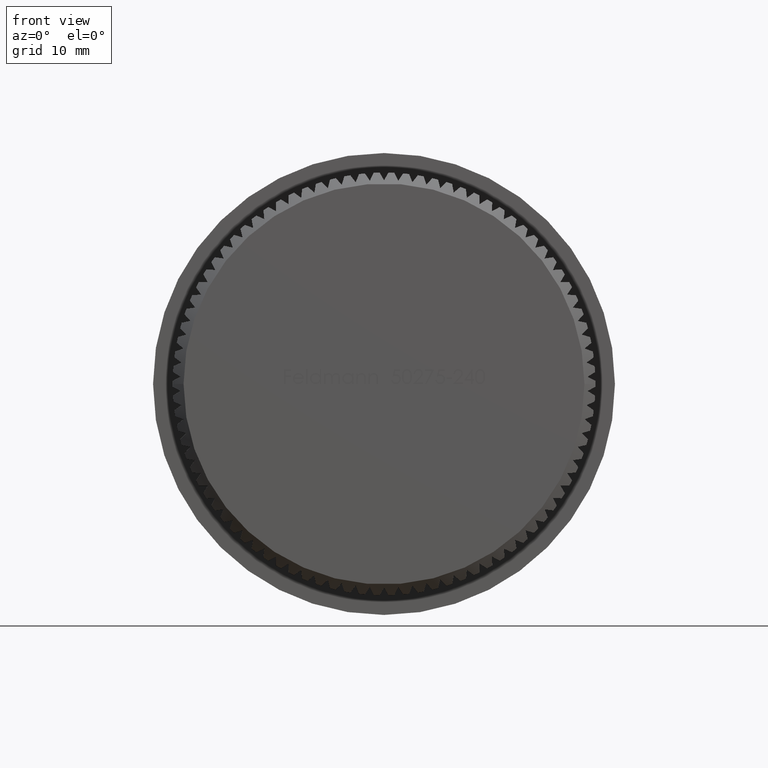
[diagram: clean part render]
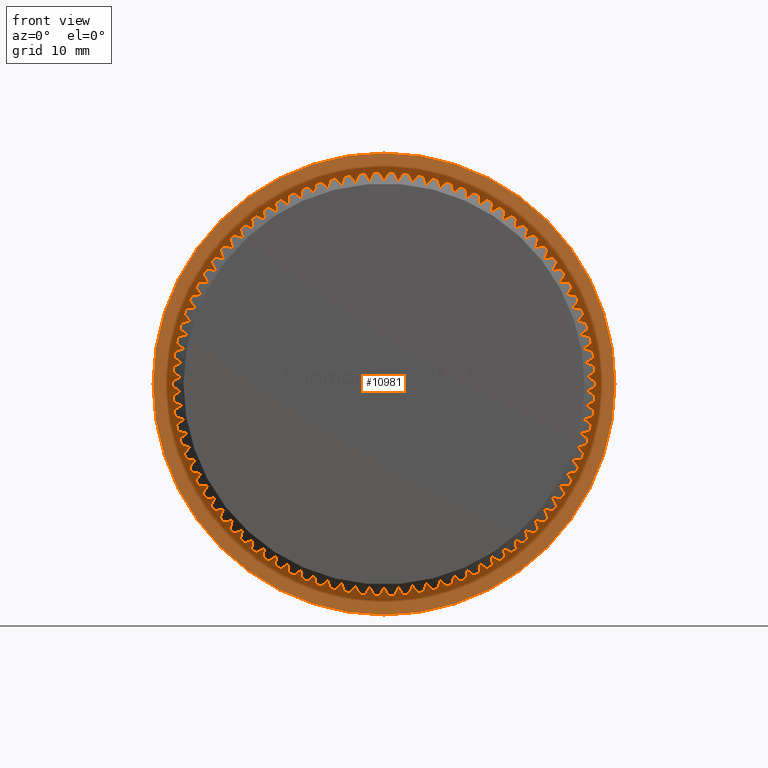
[diagram: same view with one face highlighted and labeled with its STEP entity id]
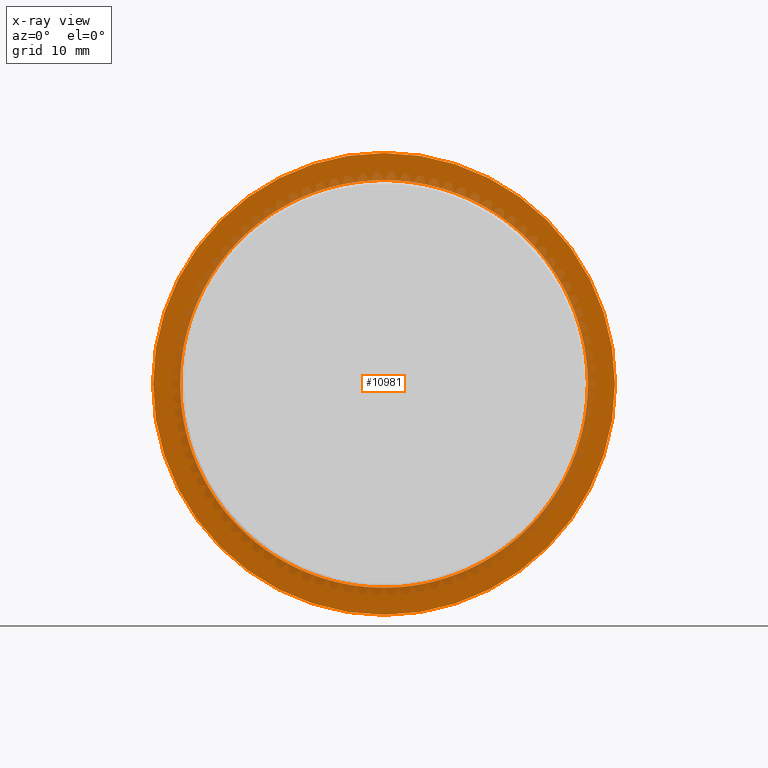
[diagram: x-ray of the same camera — body ghosted, the highlighted face saturated]
A machine part, front view. The second image highlights one B-rep face of the part: STEP entity #10981.
The next image is the same camera in x-ray: the body ghosted, the highlighted face saturated — about 19% of this face is hidden behind the body in this view.
In plain terms, the highlighted planar face has unit normal (0, -1, -0).
Its self-contained STEP definition (entity closure, byte-faithful):
#22 = EDGE_CURVE ( 'NONE', #6937, #8227, #14113, .T. ) ;
#34 = DIRECTION ( 'NONE',  ( 1.000000000000000000, 0.0000000000000000000, 0.0000000000000000000 ) ) ;
#117 = EDGE_CURVE ( 'NONE', #6870, #12704, #5117, .T. ) ;
#144 = CIRCLE ( 'NONE', #7893, 18.69999999999999900 ) ;
#157 = CARTESIAN_POINT ( 'NONE',  ( -3.424513085742286300E-028, 8.999999999999998200, 0.0000000000000000000 ) ) ;
#220 = AXIS2_PLACEMENT_3D ( 'NONE', #10484, #13970, #8616 ) ;
#221 = CARTESIAN_POINT ( 'NONE',  ( -3.424513085742286300E-028, 8.999999999999998200, 0.0000000000000000000 ) ) ;
#222 = EDGE_CURVE ( 'NONE', #11890, #15311, #18317, .T. ) ;
#262 = EDGE_CURVE ( 'NONE', #10341, #1573, #5666, .T. ) ;
#263 = CARTESIAN_POINT ( 'NONE',  ( -10.99158421786916800, 8.999999999999998200, -15.12861779481157500 ) ) ;
#275 = CIRCLE ( 'NONE', #9434, 18.69999999999999900 ) ;
#284 = AXIS2_PLACEMENT_3D ( 'NONE', #1038, #22828, #10073 ) ;
#320 = AXIS2_PLACEMENT_3D ( 'NONE', #17065, #2675, #7969 ) ;
#322 = ORIENTED_EDGE ( 'NONE', *, *, #10652, .F. ) ;
#326 = DIRECTION ( 'NONE',  ( 3.805014539713652200E-029, -1.000000000000000000, -0.0000000000000000000 ) ) ;
#377 = ORIENTED_EDGE ( 'NONE', *, *, #19747, .F. ) ;
#379 = CARTESIAN_POINT ( 'NONE',  ( 12.02012830113840500, 8.999999999999998200, -14.32503108632479000 ) ) ;
#385 = DIRECTION ( 'NONE',  ( 1.000000000000000000, 0.0000000000000000000, 0.0000000000000000000 ) ) ;
#410 = CIRCLE ( 'NONE', #3839, 18.69999999999999900 ) ;
#421 = DIRECTION ( 'NONE',  ( 3.805014539713652200E-029, -1.000000000000000000, -0.0000000000000000000 ) ) ;
#426 = AXIS2_PLACEMENT_3D ( 'NONE', #11509, #765, #10031 ) ;
#429 = VERTEX_POINT ( 'NONE', #7412 ) ;
#437 = DIRECTION ( 'NONE',  ( 1.000000000000000000, 0.0000000000000000000, 0.0000000000000000000 ) ) ;
#454 = CIRCLE ( 'NONE', #957, 18.69999999999999900 ) ;
#629 = VERTEX_POINT ( 'NONE', #3597 ) ;
#685 = VERTEX_POINT ( 'NONE', #16096 ) ;
#737 = DIRECTION ( 'NONE',  ( 3.805014539713652200E-029, -1.000000000000000000, -0.0000000000000000000 ) ) ;
#743 = CARTESIAN_POINT ( 'NONE',  ( 16.19467505076889300, 8.999999999999998200, 9.350000000000191500 ) ) ;
#758 = EDGE_CURVE ( 'NONE', #9884, #14452, #3122, .T. ) ;
#765 = DIRECTION ( 'NONE',  ( 3.805014539713652200E-029, -1.000000000000000000, -0.0000000000000000000 ) ) ;
#796 = DIRECTION ( 'NONE',  ( 1.000000000000000000, 0.0000000000000000000, 0.0000000000000000000 ) ) ;
#855 = CARTESIAN_POINT ( 'NONE',  ( -3.424513085742286300E-028, 8.999999999999998200, 0.0000000000000000000 ) ) ;
#864 = ORIENTED_EDGE ( 'NONE', *, *, #19611, .F. ) ;
#877 = DIRECTION ( 'NONE',  ( 1.000000000000000000, 0.0000000000000000000, 0.0000000000000000000 ) ) ;
#957 = AXIS2_PLACEMENT_3D ( 'NONE', #13380, #11622, #13453 ) ;
#991 = DIRECTION ( 'NONE',  ( 1.000000000000000000, 0.0000000000000000000, 0.0000000000000000000 ) ) ;
#1001 = ORIENTED_EDGE ( 'NONE', *, *, #13091, .F. ) ;
#1038 = CARTESIAN_POINT ( 'NONE',  ( -3.424513085742286300E-028, 8.999999999999998200, 0.0000000000000000000 ) ) ;
#1045 = CIRCLE ( 'NONE', #8640, 18.69999999999999900 ) ;
#1049 = CARTESIAN_POINT ( 'NONE',  ( -5.154418553777770000, 8.999999999999998200, -17.97559371404659200 ) ) ;
#1142 = EDGE_CURVE ( 'NONE', #14452, #11814, #18550, .T. ) ;
#1180 = VERTEX_POINT ( 'NONE', #4843 ) ;
#1185 = VERTEX_POINT ( 'NONE', #17408 ) ;
#1209 = EDGE_CURVE ( 'NONE', #11814, #5956, #22722, .T. ) ;
#1236 = AXIS2_PLACEMENT_3D ( 'NONE', #11807, #21523, #12396 ) ;
#1249 = ORIENTED_EDGE ( 'NONE', *, *, #20513, .F. ) ;
#1250 = VERTEX_POINT ( 'NONE', #19676 ) ;
#1346 = ORIENTED_EDGE ( 'NONE', *, *, #18816, .T. ) ;
#1416 = CARTESIAN_POINT ( 'NONE',  ( -3.424513085742286300E-028, 8.999999999999998200, 0.0000000000000000000 ) ) ;
#1418 = DIRECTION ( 'NONE',  ( 3.805014539713652200E-029, -1.000000000000000000, -0.0000000000000000000 ) ) ;
#1462 = CARTESIAN_POINT ( 'NONE',  ( 0.0000000000000000000, 8.999999999999998200, 18.69999999999999900 ) ) ;
#1527 = ORIENTED_EDGE ( 'NONE', *, *, #4145, .F. ) ;
#1542 = CARTESIAN_POINT ( 'NONE',  ( 8.779118224095952900, 8.999999999999998200, 16.51111998646204200 ) ) ;
#1548 = AXIS2_PLACEMENT_3D ( 'NONE', #15612, #4612, #18975 ) ;
#1553 = EDGE_CURVE ( 'NONE', #9721, #8521, #2500, .T. ) ;
#1557 = CARTESIAN_POINT ( 'NONE',  ( 7.605975225517595600, 8.999999999999998200, -17.08330005791657800 ) ) ;
#1559 = CIRCLE ( 'NONE', #3525, 18.69999999999999900 ) ;
#1573 = VERTEX_POINT ( 'NONE', #22143 ) ;
#1587 = CARTESIAN_POINT ( 'NONE',  ( -3.424513085742286300E-028, 8.999999999999998200, 0.0000000000000000000 ) ) ;
#1597 = CARTESIAN_POINT ( 'NONE',  ( -3.424513085742286300E-028, 8.999999999999998200, 0.0000000000000000000 ) ) ;
#1655 = CIRCLE ( 'NONE', #15520, 18.69999999999999900 ) ;
#1665 = DIRECTION ( 'NONE',  ( 1.000000000000000000, 0.0000000000000000000, 0.0000000000000000000 ) ) ;
#1787 = CIRCLE ( 'NONE', #19501, 18.69999999999999900 ) ;
#1794 = AXIS2_PLACEMENT_3D ( 'NONE', #3516, #5321, #17878 ) ;
#1822 = ORIENTED_EDGE ( 'NONE', *, *, #7630, .F. ) ;
#1827 = EDGE_CURVE ( 'NONE', #19729, #4304, #8985, .T. ) ;
#1837 = VERTEX_POINT ( 'NONE', #17616 ) ;
#1879 = CARTESIAN_POINT ( 'NONE',  ( -15.50300260677930500, 8.999999999999998200, 10.45690729490293300 ) ) ;
#1881 = CARTESIAN_POINT ( 'NONE',  ( -12.99011152758327200, 8.999999999999998200, 13.45165426633275300 ) ) ;
#1896 = CARTESIAN_POINT ( 'NONE',  ( -3.887948618291984900, 8.999999999999998200, -18.29136013372219300 ) ) ;
#1900 = DIRECTION ( 'NONE',  ( 3.805014539713652200E-029, -1.000000000000000000, -0.0000000000000000000 ) ) ;
#1926 = VERTEX_POINT ( 'NONE', #1896 ) ;
#1930 = CARTESIAN_POINT ( 'NONE',  ( -3.424513085742286300E-028, 8.999999999999998200, 0.0000000000000000000 ) ) ;
#1963 = ORIENTED_EDGE ( 'NONE', *, *, #1209, .F. ) ;
#1992 = AXIS2_PLACEMENT_3D ( 'NONE', #15898, #12519, #21355 ) ;
#2033 = CARTESIAN_POINT ( 'NONE',  ( -3.424513085742286300E-028, 8.999999999999998200, 0.0000000000000000000 ) ) ;
#2036 = ORIENTED_EDGE ( 'NONE', *, *, #2967, .F. ) ;
#2050 = DIRECTION ( 'NONE',  ( 1.000000000000000000, 0.0000000000000000000, 0.0000000000000000000 ) ) ;
#2088 = CARTESIAN_POINT ( 'NONE',  ( -3.424513085742286300E-028, 8.999999999999998200, 0.0000000000000000000 ) ) ;
#2095 = CARTESIAN_POINT ( 'NONE',  ( 16.80744866579433200, 8.999999999999998200, 8.197540444955944100 ) ) ;
#2098 = EDGE_CURVE ( 'NONE', #12009, #21856, #5869, .T. ) ;
#2125 = CARTESIAN_POINT ( 'NONE',  ( -3.424513085742286300E-028, 8.999999999999998200, 0.0000000000000000000 ) ) ;
#2150 = EDGE_CURVE ( 'NONE', #3922, #9748, #1655, .T. ) ;
#2151 = ORIENTED_EDGE ( 'NONE', *, *, #22331, .F. ) ;
#2171 = DIRECTION ( 'NONE',  ( 1.000000000000000000, 0.0000000000000000000, 0.0000000000000000000 ) ) ;
#2188 = CARTESIAN_POINT ( 'NONE',  ( 8.779118224096281500, 8.999999999999998200, -16.51111998646186800 ) ) ;
#2220 = DIRECTION ( 'NONE',  ( 1.000000000000000000, 0.0000000000000000000, 0.0000000000000000000 ) ) ;
#2285 = CARTESIAN_POINT ( 'NONE',  ( -3.424513085742286300E-028, 8.999999999999998200, 0.0000000000000000000 ) ) ;
#2299 = EDGE_CURVE ( 'NONE', #14959, #3706, #9523, .T. ) ;
#2371 = VERTEX_POINT ( 'NONE', #7015 ) ;
#2373 = DIRECTION ( 'NONE',  ( 1.000000000000000000, 0.0000000000000000000, 0.0000000000000000000 ) ) ;
#2398 = ORIENTED_EDGE ( 'NONE', *, *, #7866, .F. ) ;
#2427 = DIRECTION ( 'NONE',  ( 3.805014539713652200E-029, -1.000000000000000000, -0.0000000000000000000 ) ) ;
#2500 = CIRCLE ( 'NONE', #15840, 18.69999999999999900 ) ;
#2517 = CARTESIAN_POINT ( 'NONE',  ( -9.909490241160954200, 8.999999999999998200, 15.85849939812515300 ) ) ;
#2518 = CIRCLE ( 'NONE', #9565, 18.69999999999999900 ) ;
#2519 = CARTESIAN_POINT ( 'NONE',  ( -6.395776680190020400, 8.999999999999998200, 17.57225200869648400 ) ) ;
#2523 = DIRECTION ( 'NONE',  ( 1.000000000000000000, 0.0000000000000000000, 0.0000000000000000000 ) ) ;
#2597 = AXIS2_PLACEMENT_3D ( 'NONE', #8067, #11646, #22446 ) ;
#2602 = CARTESIAN_POINT ( 'NONE',  ( 14.73580109244556400, 8.999999999999998200, 11.51286958858998200 ) ) ;
#2664 = CIRCLE ( 'NONE', #6950, 18.69999999999999900 ) ;
#2674 = VERTEX_POINT ( 'NONE', #21627 ) ;
#2675 = DIRECTION ( 'NONE',  ( 3.805014539713652200E-029, -1.000000000000000000, -0.0000000000000000000 ) ) ;
#2676 = EDGE_CURVE ( 'NONE', #15634, #14963, #15998, .T. ) ;
#2746 = CARTESIAN_POINT ( 'NONE',  ( 7.605975225517253700, 8.999999999999998200, 17.08330005791673000 ) ) ;
#2751 = CARTESIAN_POINT ( 'NONE',  ( -13.89680823642729400, 8.999999999999998200, 12.51274233891062300 ) ) ;
#2763 = VERTEX_POINT ( 'NONE', #8843 ) ;
#2792 = DIRECTION ( 'NONE',  ( 3.805014539713652200E-029, -1.000000000000000000, -0.0000000000000000000 ) ) ;
#2795 = VERTEX_POINT ( 'NONE', #10394 ) ;
#2852 = EDGE_CURVE ( 'NONE', #8797, #2763, #12338, .T. ) ;
#2870 = VERTEX_POINT ( 'NONE', #11026 ) ;
#2887 = AXIS2_PLACEMENT_3D ( 'NONE', #19798, #21352, #3483 ) ;
#2892 = EDGE_CURVE ( 'NONE', #12439, #19443, #19621, .T. ) ;
#2905 = DIRECTION ( 'NONE',  ( 1.000000000000000000, 0.0000000000000000000, 0.0000000000000000000 ) ) ;
#2953 = DIRECTION ( 'NONE',  ( 1.000000000000000000, 0.0000000000000000000, 0.0000000000000000000 ) ) ;
#2967 = EDGE_CURVE ( 'NONE', #1573, #22198, #12626, .T. ) ;
#2981 = ORIENTED_EDGE ( 'NONE', *, *, #3035, .F. ) ;
#3031 = AXIS2_PLACEMENT_3D ( 'NONE', #1587, #5217, #7041 ) ;
#3035 = EDGE_CURVE ( 'NONE', #20138, #6788, #6733, .T. ) ;
#3088 = CARTESIAN_POINT ( 'NONE',  ( -3.424513085742286300E-028, 8.999999999999998200, 0.0000000000000000000 ) ) ;
#3090 = DIRECTION ( 'NONE',  ( 1.000000000000000000, 0.0000000000000000000, 0.0000000000000000000 ) ) ;
#3093 = DIRECTION ( 'NONE',  ( 3.805014539713652200E-029, -1.000000000000000000, -0.0000000000000000000 ) ) ;
#3114 = DIRECTION ( 'NONE',  ( 1.000000000000000000, 0.0000000000000000000, 0.0000000000000000000 ) ) ;
#3122 = CIRCLE ( 'NONE', #5882, 18.69999999999999900 ) ;
#3138 = CARTESIAN_POINT ( 'NONE',  ( -14.73580109244572400, 8.999999999999998200, 11.51286958858978000 ) ) ;
#3165 = CARTESIAN_POINT ( 'NONE',  ( 2.602536987953354400, 8.999999999999998200, -18.51801288546734600 ) ) ;
#3200 = DIRECTION ( 'NONE',  ( 1.000000000000000000, 0.0000000000000000000, 0.0000000000000000000 ) ) ;
#3275 = CARTESIAN_POINT ( 'NONE',  ( -3.424513085742286300E-028, 8.999999999999998200, 0.0000000000000000000 ) ) ;
#3279 = CARTESIAN_POINT ( 'NONE',  ( 5.154418553778016900, 8.999999999999998200, -17.97559371404652500 ) ) ;
#3315 = DIRECTION ( 'NONE',  ( 3.805014539713652200E-029, -1.000000000000000000, -0.0000000000000000000 ) ) ;
#3330 = VERTEX_POINT ( 'NONE', #23100 ) ;
#3389 = DIRECTION ( 'NONE',  ( 1.000000000000000000, 0.0000000000000000000, 0.0000000000000000000 ) ) ;
#3415 = AXIS2_PLACEMENT_3D ( 'NONE', #18499, #22233, #7774 ) ;
#3464 = CARTESIAN_POINT ( 'NONE',  ( 18.59755944338669000, 8.999999999999998200, 1.954682263105312000 ) ) ;
#3483 = DIRECTION ( 'NONE',  ( 1.000000000000000000, 0.0000000000000000000, 0.0000000000000000000 ) ) ;
#3499 = EDGE_CURVE ( 'NONE', #15246, #16910, #12037, .T. ) ;
#3516 = CARTESIAN_POINT ( 'NONE',  ( -3.424513085742286300E-028, 8.999999999999998200, 0.0000000000000000000 ) ) ;
#3525 = AXIS2_PLACEMENT_3D ( 'NONE', #14970, #20268, #437 ) ;
#3529 = AXIS2_PLACEMENT_3D ( 'NONE', #5610, #18259, #10944 ) ;
#3556 = DIRECTION ( 'NONE',  ( 1.000000000000000000, 0.0000000000000000000, 0.0000000000000000000 ) ) ;
#3581 = ORIENTED_EDGE ( 'NONE', *, *, #3499, .F. ) ;
#3586 = CARTESIAN_POINT ( 'NONE',  ( -3.424513085742286300E-028, 8.999999999999998200, 0.0000000000000000000 ) ) ;
#3597 = CARTESIAN_POINT ( 'NONE',  ( 10.99158421786906300, 8.999999999999998200, 15.12861779481164800 ) ) ;
#3613 = CIRCLE ( 'NONE', #12478, 18.69999999999999900 ) ;
#3706 = VERTEX_POINT ( 'NONE', #21196 ) ;
#3757 = CARTESIAN_POINT ( 'NONE',  ( -17.33833808039889500, 8.999999999999998200, -7.005143296877627700 ) ) ;
#3796 = CARTESIAN_POINT ( 'NONE',  ( -3.424513085742286300E-028, 8.999999999999998200, 0.0000000000000000000 ) ) ;
#3811 = EDGE_CURVE ( 'NONE', #22198, #12439, #19301, .T. ) ;
#3839 = AXIS2_PLACEMENT_3D ( 'NONE', #19937, #12741, #13055 ) ;
#3869 = DIRECTION ( 'NONE',  ( 3.805014539713652200E-029, -1.000000000000000000, -0.0000000000000000000 ) ) ;
#3922 = VERTEX_POINT ( 'NONE', #22550 ) ;
#3940 = AXIS2_PLACEMENT_3D ( 'NONE', #22286, #4424, #19081 ) ;
#3942 = AXIS2_PLACEMENT_3D ( 'NONE', #5278, #1418, #3556 ) ;
#3948 = ORIENTED_EDGE ( 'NONE', *, *, #21383, .F. ) ;
#3969 = ORIENTED_EDGE ( 'NONE', *, *, #23073, .F. ) ;
#3970 = CARTESIAN_POINT ( 'NONE',  ( -3.424513085742286300E-028, 8.999999999999998200, 0.0000000000000000000 ) ) ;
#4047 = VERTEX_POINT ( 'NONE', #3279 ) ;
#4070 = CIRCLE ( 'NONE', #7020, 18.69999999999999900 ) ;
#4076 = EDGE_CURVE ( 'NONE', #9866, #5986, #17354, .T. ) ;
#4097 = DIRECTION ( 'NONE',  ( 1.000000000000000000, 0.0000000000000000000, 0.0000000000000000000 ) ) ;
#4103 = DIRECTION ( 'NONE',  ( 3.805014539713652200E-029, -1.000000000000000000, -0.0000000000000000000 ) ) ;
#4145 = EDGE_CURVE ( 'NONE', #5155, #21751, #1045, .T. ) ;
#4150 = DIRECTION ( 'NONE',  ( 3.805014539713652200E-029, -1.000000000000000000, -0.0000000000000000000 ) ) ;
#4191 = ORIENTED_EDGE ( 'NONE', *, *, #21062, .T. ) ;
#4213 = CARTESIAN_POINT ( 'NONE',  ( 15.50300260677915900, 8.999999999999998200, 10.45690729490314800 ) ) ;
#4276 = AXIS2_PLACEMENT_3D ( 'NONE', #14158, #5429, #3389 ) ;
#4282 = ORIENTED_EDGE ( 'NONE', *, *, #20960, .F. ) ;
#4304 = VERTEX_POINT ( 'NONE', #3138 ) ;
#4307 = AXIS2_PLACEMENT_3D ( 'NONE', #13329, #4150, #20442 ) ;
#4310 = CARTESIAN_POINT ( 'NONE',  ( -3.424513085742286300E-028, 8.999999999999998200, 0.0000000000000000000 ) ) ;
#4327 = ORIENTED_EDGE ( 'NONE', *, *, #11408, .F. ) ;
#4330 = CIRCLE ( 'NONE', #15228, 21.20000000000000300 ) ;
#4381 = DIRECTION ( 'NONE',  ( 1.000000000000000000, 0.0000000000000000000, 0.0000000000000000000 ) ) ;
#4410 = AXIS2_PLACEMENT_3D ( 'NONE', #20911, #13651, #4766 ) ;
#4424 = DIRECTION ( 'NONE',  ( 3.805014539713652200E-029, -1.000000000000000000, -0.0000000000000000000 ) ) ;
#4442 = CARTESIAN_POINT ( 'NONE',  ( -10.99158421786926700, 8.999999999999998200, 15.12861779481150200 ) ) ;
#4580 = CIRCLE ( 'NONE', #1236, 18.69999999999999900 ) ;
#4595 = ORIENTED_EDGE ( 'NONE', *, *, #222, .F. ) ;
#4612 = DIRECTION ( 'NONE',  ( 3.805014539713652200E-029, -1.000000000000000000, -0.0000000000000000000 ) ) ;
#4619 = AXIS2_PLACEMENT_3D ( 'NONE', #2033, #18147, #12651 ) ;
#4657 = EDGE_CURVE ( 'NONE', #1180, #21700, #8902, .T. ) ;
#4695 = EDGE_CURVE ( 'NONE', #17216, #16164, #13124, .T. ) ;
#4766 = DIRECTION ( 'NONE',  ( 1.000000000000000000, 0.0000000000000000000, 0.0000000000000000000 ) ) ;
#4797 = ORIENTED_EDGE ( 'NONE', *, *, #16770, .F. ) ;
#4820 = AXIS2_PLACEMENT_3D ( 'NONE', #855, #15106, #8188 ) ;
#4843 = CARTESIAN_POINT ( 'NONE',  ( 18.68860846525708300, 8.999999999999998200, 0.6526205883369569100 ) ) ;
#4854 = VERTEX_POINT ( 'NONE', #12616 ) ;
#4889 = AXIS2_PLACEMENT_3D ( 'NONE', #10539, #12378, #23145 ) ;
#4890 = EDGE_CURVE ( 'NONE', #3706, #20138, #20104, .T. ) ;
#4978 = CARTESIAN_POINT ( 'NONE',  ( -3.424513085742286300E-028, 8.999999999999998200, 0.0000000000000000000 ) ) ;
#4982 = DIRECTION ( 'NONE',  ( 3.805014539713652200E-029, -1.000000000000000000, -0.0000000000000000000 ) ) ;
#4996 = AXIS2_PLACEMENT_3D ( 'NONE', #11706, #22506, #796 ) ;
#5008 = CARTESIAN_POINT ( 'NONE',  ( -3.424513085742286300E-028, 8.999999999999998200, 0.0000000000000000000 ) ) ;
#5035 = EDGE_CURVE ( 'NONE', #16910, #4047, #17604, .T. ) ;
#5054 = DIRECTION ( 'NONE',  ( 3.805014539713652200E-029, -1.000000000000000000, -0.0000000000000000000 ) ) ;
#5111 = CARTESIAN_POINT ( 'NONE',  ( -3.424513085742286300E-028, 8.999999999999998200, 0.0000000000000000000 ) ) ;
#5117 = CIRCLE ( 'NONE', #320, 18.69999999999999900 ) ;
#5119 = FACE_OUTER_BOUND ( 'NONE', #5126, .T. ) ;
#5126 = EDGE_LOOP ( 'NONE', ( #1346, #4191 ) ) ;
#5141 = DIRECTION ( 'NONE',  ( 3.805014539713652200E-029, -1.000000000000000000, -0.0000000000000000000 ) ) ;
#5155 = VERTEX_POINT ( 'NONE', #8440 ) ;
#5197 = CARTESIAN_POINT ( 'NONE',  ( -3.424513085742286300E-028, 8.999999999999998200, 0.0000000000000000000 ) ) ;
#5215 = VERTEX_POINT ( 'NONE', #14507 ) ;
#5217 = DIRECTION ( 'NONE',  ( 3.805014539713652200E-029, -1.000000000000000000, -0.0000000000000000000 ) ) ;
#5218 = EDGE_CURVE ( 'NONE', #4854, #429, #8057, .T. ) ;
#5234 = ORIENTED_EDGE ( 'NONE', *, *, #4695, .F. ) ;
#5252 = ORIENTED_EDGE ( 'NONE', *, *, #2098, .F. ) ;
#5278 = CARTESIAN_POINT ( 'NONE',  ( -3.424513085742286300E-028, 8.999999999999998200, 0.0000000000000000000 ) ) ;
#5308 = CARTESIAN_POINT ( 'NONE',  ( -3.424513085742286300E-028, 8.999999999999998200, 0.0000000000000000000 ) ) ;
#5321 = DIRECTION ( 'NONE',  ( 3.805014539713652200E-029, -1.000000000000000000, -0.0000000000000000000 ) ) ;
#5412 = EDGE_CURVE ( 'NONE', #22958, #2371, #454, .T. ) ;
#5429 = DIRECTION ( 'NONE',  ( 3.805014539713652200E-029, -1.000000000000000000, -0.0000000000000000000 ) ) ;
#5432 = VERTEX_POINT ( 'NONE', #22362 ) ;
#5433 = CIRCLE ( 'NONE', #12606, 18.69999999999999900 ) ;
#5466 = CIRCLE ( 'NONE', #3940, 18.69999999999999900 ) ;
#5486 = AXIS2_PLACEMENT_3D ( 'NONE', #16460, #3869, #5658 ) ;
#5610 = CARTESIAN_POINT ( 'NONE',  ( -3.424513085742286300E-028, 8.999999999999998200, 0.0000000000000000000 ) ) ;
#5611 = DIRECTION ( 'NONE',  ( 1.000000000000000000, 0.0000000000000000000, 0.0000000000000000000 ) ) ;
#5648 = CIRCLE ( 'NONE', #10340, 18.69999999999999900 ) ;
#5658 = DIRECTION ( 'NONE',  ( 1.000000000000000000, 0.0000000000000000000, 0.0000000000000000000 ) ) ;
#5666 = CIRCLE ( 'NONE', #3942, 18.69999999999999900 ) ;
#5671 = CIRCLE ( 'NONE', #9150, 18.69999999999999900 ) ;
#5679 = ORIENTED_EDGE ( 'NONE', *, *, #7509, .F. ) ;
#5697 = CARTESIAN_POINT ( 'NONE',  ( 13.89680823642737900, 8.999999999999998200, -12.51274233891053100 ) ) ;
#5720 = CARTESIAN_POINT ( 'NONE',  ( -3.424513085742286300E-028, 8.999999999999998200, 0.0000000000000000000 ) ) ;
#5744 = AXIS2_PLACEMENT_3D ( 'NONE', #12373, #21444, #19730 ) ;
#5752 = ORIENTED_EDGE ( 'NONE', *, *, #2150, .F. ) ;
#5797 = CARTESIAN_POINT ( 'NONE',  ( -3.424513085742286300E-028, 8.999999999999998200, 0.0000000000000000000 ) ) ;
#5841 = ORIENTED_EDGE ( 'NONE', *, *, #16935, .F. ) ;
#5869 = CIRCLE ( 'NONE', #22694, 18.69999999999999900 ) ;
#5882 = AXIS2_PLACEMENT_3D ( 'NONE', #7882, #5977, #11387 ) ;
#5904 = CARTESIAN_POINT ( 'NONE',  ( 9.909490241161060800, 8.999999999999998200, -15.85849939812508300 ) ) ;
#5909 = DIRECTION ( 'NONE',  ( 3.805014539713652200E-029, -1.000000000000000000, -0.0000000000000000000 ) ) ;
#5938 = CIRCLE ( 'NONE', #21608, 18.69999999999999900 ) ;
#5955 = ORIENTED_EDGE ( 'NONE', *, *, #12259, .F. ) ;
#5956 = VERTEX_POINT ( 'NONE', #2602 ) ;
#5977 = DIRECTION ( 'NONE',  ( 3.805014539713652200E-029, -1.000000000000000000, -0.0000000000000000000 ) ) ;
#5986 = VERTEX_POINT ( 'NONE', #2519 ) ;
#6009 = CIRCLE ( 'NONE', #4820, 18.69999999999999900 ) ;
#6074 = VERTEX_POINT ( 'NONE', #7978 ) ;
#6154 = VERTEX_POINT ( 'NONE', #15425 ) ;
#6191 = AXIS2_PLACEMENT_3D ( 'NONE', #3796, #16527, #18313 ) ;
#6212 = CIRCLE ( 'NONE', #6769, 18.69999999999999900 ) ;
#6348 = DIRECTION ( 'NONE',  ( 3.805014539713652200E-029, -1.000000000000000000, -0.0000000000000000000 ) ) ;
#6354 = ORIENTED_EDGE ( 'NONE', *, *, #10546, .F. ) ;
#6417 = CARTESIAN_POINT ( 'NONE',  ( -3.424513085742286300E-028, 8.999999999999998200, 0.0000000000000000000 ) ) ;
#6536 = ORIENTED_EDGE ( 'NONE', *, *, #17557, .F. ) ;
#6593 = CIRCLE ( 'NONE', #4307, 18.69999999999999900 ) ;
#6616 = VERTEX_POINT ( 'NONE', #6771 ) ;
#6617 = DIRECTION ( 'NONE',  ( 3.805014539713652200E-029, -1.000000000000000000, -0.0000000000000000000 ) ) ;
#6662 = VERTEX_POINT ( 'NONE', #1557 ) ;
#6729 = DIRECTION ( 'NONE',  ( 1.000000000000000000, 0.0000000000000000000, 0.0000000000000000000 ) ) ;
#6733 = CIRCLE ( 'NONE', #2887, 18.69999999999999900 ) ;
#6765 = CARTESIAN_POINT ( 'NONE',  ( 18.14453008136118200, 8.999999999999998200, -4.523939447713610600 ) ) ;
#6769 = AXIS2_PLACEMENT_3D ( 'NONE', #20661, #20426, #22441 ) ;
#6771 = CARTESIAN_POINT ( 'NONE',  ( 18.69999999999999900, 8.999999999999998200, 0.0000000000000000000 ) ) ;
#6788 = VERTEX_POINT ( 'NONE', #20569 ) ;
#6807 = CARTESIAN_POINT ( 'NONE',  ( -3.424513085742286300E-028, 8.999999999999998200, 0.0000000000000000000 ) ) ;
#6844 = EDGE_CURVE ( 'NONE', #20448, #17925, #8003, .T. ) ;
#6870 = VERTEX_POINT ( 'NONE', #11395 ) ;
#6907 = CARTESIAN_POINT ( 'NONE',  ( 17.78475685471942900, 8.999999999999998200, -5.778617794811348000 ) ) ;
#6937 = VERTEX_POINT ( 'NONE', #15657 ) ;
#6950 = AXIS2_PLACEMENT_3D ( 'NONE', #11481, #737, #2523 ) ;
#7015 = CARTESIAN_POINT ( 'NONE',  ( -12.02012830113830300, 8.999999999999998200, 14.32503108632487400 ) ) ;
#7020 = AXIS2_PLACEMENT_3D ( 'NONE', #2125, #14874, #4097 ) ;
#7034 = ORIENTED_EDGE ( 'NONE', *, *, #4657, .F. ) ;
#7038 = CIRCLE ( 'NONE', #4619, 18.69999999999999900 ) ;
#7041 = DIRECTION ( 'NONE',  ( 1.000000000000000000, 0.0000000000000000000, 0.0000000000000000000 ) ) ;
#7064 = DIRECTION ( 'NONE',  ( 3.805014539713652200E-029, -1.000000000000000000, -0.0000000000000000000 ) ) ;
#7075 = ORIENTED_EDGE ( 'NONE', *, *, #3811, .F. ) ;
#7085 = ORIENTED_EDGE ( 'NONE', *, *, #14478, .F. ) ;
#7091 = AXIS2_PLACEMENT_3D ( 'NONE', #2285, #18840, #22496 ) ;
#7225 = DIRECTION ( 'NONE',  ( 1.000000000000000000, 0.0000000000000000000, 0.0000000000000000000 ) ) ;
#7232 = DIRECTION ( 'NONE',  ( 3.805014539713652200E-029, -1.000000000000000000, -0.0000000000000000000 ) ) ;
#7365 = AXIS2_PLACEMENT_3D ( 'NONE', #1930, #16325, #19898 ) ;
#7410 = VERTEX_POINT ( 'NONE', #8937 ) ;
#7412 = CARTESIAN_POINT ( 'NONE',  ( -3.887948618292108800, 8.999999999999998200, 18.29136013372216500 ) ) ;
#7459 = DIRECTION ( 'NONE',  ( 3.805014539713652200E-029, -1.000000000000000000, -0.0000000000000000000 ) ) ;
#7509 = EDGE_CURVE ( 'NONE', #1926, #9721, #23099, .T. ) ;
#7519 = CIRCLE ( 'NONE', #1794, 18.69999999999999900 ) ;
#7538 = CARTESIAN_POINT ( 'NONE',  ( 18.14453008136109000, 8.999999999999998200, 4.523939447713972900 ) ) ;
#7630 = EDGE_CURVE ( 'NONE', #17844, #17839, #1787, .T. ) ;
#7636 = CIRCLE ( 'NONE', #8378, 18.69999999999999900 ) ;
#7655 = DIRECTION ( 'NONE',  ( 1.000000000000000000, 0.0000000000000000000, 0.0000000000000000000 ) ) ;
#7667 = ORIENTED_EDGE ( 'NONE', *, *, #117, .F. ) ;
#7670 = DIRECTION ( 'NONE',  ( 3.805014539713652200E-029, -1.000000000000000000, -0.0000000000000000000 ) ) ;
#7733 = CARTESIAN_POINT ( 'NONE',  ( -3.424513085742286300E-028, 8.999999999999998200, 0.0000000000000000000 ) ) ;
#7739 = CARTESIAN_POINT ( 'NONE',  ( -3.424513085742286300E-028, 8.999999999999998200, 0.0000000000000000000 ) ) ;
#7745 = ORIENTED_EDGE ( 'NONE', *, *, #13326, .F. ) ;
#7774 = DIRECTION ( 'NONE',  ( 1.000000000000000000, 0.0000000000000000000, 0.0000000000000000000 ) ) ;
#7810 = DIRECTION ( 'NONE',  ( 3.805014539713652200E-029, -1.000000000000000000, -0.0000000000000000000 ) ) ;
#7812 = CARTESIAN_POINT ( 'NONE',  ( -7.605975225517360300, 8.999999999999998200, -17.08330005791668400 ) ) ;
#7814 = ORIENTED_EDGE ( 'NONE', *, *, #19715, .F. ) ;
#7846 = ORIENTED_EDGE ( 'NONE', *, *, #23207, .F. ) ;
#7866 = EDGE_CURVE ( 'NONE', #5956, #2795, #16151, .T. ) ;
#7880 = CARTESIAN_POINT ( 'NONE',  ( -3.424513085742286300E-028, 8.999999999999998200, 0.0000000000000000000 ) ) ;
#7882 = CARTESIAN_POINT ( 'NONE',  ( -3.424513085742286300E-028, 8.999999999999998200, 0.0000000000000000000 ) ) ;
#7886 = CARTESIAN_POINT ( 'NONE',  ( -3.424513085742286300E-028, 8.999999999999998200, 0.0000000000000000000 ) ) ;
#7893 = AXIS2_PLACEMENT_3D ( 'NONE', #11072, #326, #20019 ) ;
#7896 = AXIS2_PLACEMENT_3D ( 'NONE', #9951, #22468, #4381 ) ;
#7927 = CARTESIAN_POINT ( 'NONE',  ( -18.68860846525709400, 8.999999999999998200, 0.6526205883367010000 ) ) ;
#7957 = DIRECTION ( 'NONE',  ( 3.805014539713652200E-029, -1.000000000000000000, -0.0000000000000000000 ) ) ;
#7968 = EDGE_LOOP ( 'NONE', ( #1249, #8344, #6536, #21497, #7667, #14941, #8824, #8148, #18075, #20901, #9143, #5234, #322, #2398, #1963, #18928, #10360, #10270, #19555, #14650, #14968, #5955, #7034, #21008, #11939, #16636, #6354, #8934, #7075, #2036, #21591, #4282, #2981, #17977, #10993, #10952, #22599, #7085, #1822, #7846, #22130, #19143, #21031, #22238, #3581, #17140, #4797, #13561, #20108, #5679, #15651, #7814, #14220, #4327, #5841, #18329, #16566, #16466, #9591, #3969, #4595, #8725, #16217, #7745, #23173, #1527, #19146, #20941, #377, #13899, #5252, #1001, #10693, #5752, #3948, #12909, #13001, #9345, #2151, #11452, #864, #10301, #13952, #17931, #9403, #9005, #20004, #14698, #23171, #11621, #8469 ) ) ;
#7969 = DIRECTION ( 'NONE',  ( 1.000000000000000000, 0.0000000000000000000, 0.0000000000000000000 ) ) ;
#7978 = CARTESIAN_POINT ( 'NONE',  ( 6.395776680189786800, 8.999999999999998200, 17.57225200869657300 ) ) ;
#8003 = CIRCLE ( 'NONE', #10767, 18.69999999999999900 ) ;
#8057 = CIRCLE ( 'NONE', #4889, 18.69999999999999900 ) ;
#8058 = DIRECTION ( 'NONE',  ( 1.000000000000000000, 0.0000000000000000000, 0.0000000000000000000 ) ) ;
#8061 = DIRECTION ( 'NONE',  ( 1.000000000000000000, 0.0000000000000000000, 0.0000000000000000000 ) ) ;
#8067 = CARTESIAN_POINT ( 'NONE',  ( -3.424513085742286300E-028, 8.999999999999998200, 0.0000000000000000000 ) ) ;
#8126 = CIRCLE ( 'NONE', #12304, 18.69999999999999900 ) ;
#8148 = ORIENTED_EDGE ( 'NONE', *, *, #6844, .F. ) ;
#8188 = DIRECTION ( 'NONE',  ( 1.000000000000000000, 0.0000000000000000000, 0.0000000000000000000 ) ) ;
#8215 = DIRECTION ( 'NONE',  ( 1.000000000000000000, 0.0000000000000000000, 0.0000000000000000000 ) ) ;
#8227 = VERTEX_POINT ( 'NONE', #2517 ) ;
#8317 = DIRECTION ( 'NONE',  ( 1.000000000000000000, 3.805014539713652200E-029, 0.0000000000000000000 ) ) ;
#8344 = ORIENTED_EDGE ( 'NONE', *, *, #13536, .F. ) ;
#8370 = DIRECTION ( 'NONE',  ( 1.000000000000000000, 0.0000000000000000000, 0.0000000000000000000 ) ) ;
#8378 = AXIS2_PLACEMENT_3D ( 'NONE', #21281, #20074, #11055 ) ;
#8393 = CARTESIAN_POINT ( 'NONE',  ( -3.424513085742286300E-028, 8.999999999999998200, 0.0000000000000000000 ) ) ;
#8440 = CARTESIAN_POINT ( 'NONE',  ( -18.14453008136111800, 8.999999999999998200, -4.523939447713859300 ) ) ;
#8469 = ORIENTED_EDGE ( 'NONE', *, *, #12610, .F. ) ;
#8521 = VERTEX_POINT ( 'NONE', #19992 ) ;
#8563 = DIRECTION ( 'NONE',  ( 1.000000000000000000, 0.0000000000000000000, 0.0000000000000000000 ) ) ;
#8569 = EDGE_CURVE ( 'NONE', #6074, #6870, #6593, .T. ) ;
#8590 = CARTESIAN_POINT ( 'NONE',  ( 9.909490241160739300, 8.999999999999998200, 15.85849939812528800 ) ) ;
#8616 = DIRECTION ( 'NONE',  ( 1.000000000000000000, 0.0000000000000000000, 0.0000000000000000000 ) ) ;
#8640 = AXIS2_PLACEMENT_3D ( 'NONE', #7739, #7810, #7655 ) ;
#8650 = CIRCLE ( 'NONE', #426, 18.69999999999999900 ) ;
#8666 = DIRECTION ( 'NONE',  ( 3.805014539713652200E-029, -1.000000000000000000, -0.0000000000000000000 ) ) ;
#8673 = AXIS2_PLACEMENT_3D ( 'NONE', #13628, #22677, #8215 ) ;
#8725 = ORIENTED_EDGE ( 'NONE', *, *, #23143, .F. ) ;
#8739 = CARTESIAN_POINT ( 'NONE',  ( -3.424513085742286300E-028, 8.999999999999998200, 0.0000000000000000000 ) ) ;
#8755 = FACE_BOUND ( 'NONE', #7968, .T. ) ;
#8767 = DIRECTION ( 'NONE',  ( 1.000000000000000000, 0.0000000000000000000, 0.0000000000000000000 ) ) ;
#8773 = DIRECTION ( 'NONE',  ( 1.000000000000000000, 0.0000000000000000000, 0.0000000000000000000 ) ) ;
#8778 = AXIS2_PLACEMENT_3D ( 'NONE', #4310, #11432, #991 ) ;
#8797 = VERTEX_POINT ( 'NONE', #13789 ) ;
#8824 = ORIENTED_EDGE ( 'NONE', *, *, #10117, .F. ) ;
#8826 = CARTESIAN_POINT ( 'NONE',  ( -3.424513085742286300E-028, 8.999999999999998200, 0.0000000000000000000 ) ) ;
#8843 = CARTESIAN_POINT ( 'NONE',  ( -17.33833808039893800, 8.999999999999998200, 7.005143296877509600 ) ) ;
#8902 = CIRCLE ( 'NONE', #7896, 18.69999999999999900 ) ;
#8919 = EDGE_CURVE ( 'NONE', #10523, #13542, #22790, .T. ) ;
#8934 = ORIENTED_EDGE ( 'NONE', *, *, #2892, .F. ) ;
#8937 = CARTESIAN_POINT ( 'NONE',  ( 21.20000000000000300, 8.999999999999998200, 0.0000000000000000000 ) ) ;
#8939 = CARTESIAN_POINT ( 'NONE',  ( -3.424513085742286300E-028, 8.999999999999998200, 0.0000000000000000000 ) ) ;
#8985 = CIRCLE ( 'NONE', #3031, 18.69999999999999900 ) ;
#9005 = ORIENTED_EDGE ( 'NONE', *, *, #9946, .F. ) ;
#9024 = CARTESIAN_POINT ( 'NONE',  ( 0.0000000000000000000, 8.999999999999998200, -18.69999999999999900 ) ) ;
#9070 = DIRECTION ( 'NONE',  ( 3.805014539713652200E-029, -1.000000000000000000, -0.0000000000000000000 ) ) ;
#9081 = CARTESIAN_POINT ( 'NONE',  ( 12.02012830113811300, 8.999999999999998200, 14.32503108632503200 ) ) ;
#9123 = CIRCLE ( 'NONE', #11723, 18.69999999999999900 ) ;
#9126 = DIRECTION ( 'NONE',  ( 3.805014539713652200E-029, -1.000000000000000000, -0.0000000000000000000 ) ) ;
#9143 = ORIENTED_EDGE ( 'NONE', *, *, #14726, .F. ) ;
#9150 = AXIS2_PLACEMENT_3D ( 'NONE', #5197, #12501, #14324 ) ;
#9184 = CARTESIAN_POINT ( 'NONE',  ( -18.41590498132827500, 8.999999999999998200, -3.247220922371670600 ) ) ;
#9223 = AXIS2_PLACEMENT_3D ( 'NONE', #8939, #16264, #10737 ) ;
#9234 = DIRECTION ( 'NONE',  ( 1.000000000000000000, 0.0000000000000000000, 0.0000000000000000000 ) ) ;
#9274 = CIRCLE ( 'NONE', #16541, 18.69999999999999900 ) ;
#9319 = DIRECTION ( 'NONE',  ( 3.805014539713652200E-029, -1.000000000000000000, -0.0000000000000000000 ) ) ;
#9345 = ORIENTED_EDGE ( 'NONE', *, *, #2676, .F. ) ;
#9403 = ORIENTED_EDGE ( 'NONE', *, *, #22, .F. ) ;
#9434 = AXIS2_PLACEMENT_3D ( 'NONE', #12888, #11060, #21717 ) ;
#9470 = AXIS2_PLACEMENT_3D ( 'NONE', #5008, #13887, #3114 ) ;
#9503 = DIRECTION ( 'NONE',  ( 3.805014539713652200E-029, -1.000000000000000000, -0.0000000000000000000 ) ) ;
#9514 = CARTESIAN_POINT ( 'NONE',  ( -3.424513085742286300E-028, 8.999999999999998200, 0.0000000000000000000 ) ) ;
#9523 = CIRCLE ( 'NONE', #17038, 18.69999999999999900 ) ;
#9565 = AXIS2_PLACEMENT_3D ( 'NONE', #157, #16504, #19999 ) ;
#9591 = ORIENTED_EDGE ( 'NONE', *, *, #10078, .F. ) ;
#9600 = VERTEX_POINT ( 'NONE', #19063 ) ;
#9610 = DIRECTION ( 'NONE',  ( 3.805014539713652200E-029, -1.000000000000000000, -0.0000000000000000000 ) ) ;
#9619 = CARTESIAN_POINT ( 'NONE',  ( -15.50300260677923000, 8.999999999999998200, -10.45690729490303800 ) ) ;
#9675 = VERTEX_POINT ( 'NONE', #15701 ) ;
#9678 = CARTESIAN_POINT ( 'NONE',  ( -18.59755944338670400, 8.999999999999998200, -1.954682263105188800 ) ) ;
#9721 = VERTEX_POINT ( 'NONE', #22558 ) ;
#9738 = AXIS2_PLACEMENT_3D ( 'NONE', #3088, #5054, #10233 ) ;
#9748 = VERTEX_POINT ( 'NONE', #15629 ) ;
#9866 = VERTEX_POINT ( 'NONE', #21165 ) ;
#9884 = VERTEX_POINT ( 'NONE', #2095 ) ;
#9899 = CARTESIAN_POINT ( 'NONE',  ( 10.99158421786937200, 8.999999999999998200, -15.12861779481142900 ) ) ;
#9905 = AXIS2_PLACEMENT_3D ( 'NONE', #4978, #18946, #10298 ) ;
#9926 = CARTESIAN_POINT ( 'NONE',  ( -7.605975225517480200, 8.999999999999998200, 17.08330005791662700 ) ) ;
#9946 = EDGE_CURVE ( 'NONE', #13675, #6937, #5433, .T. ) ;
#9950 = EDGE_CURVE ( 'NONE', #2674, #12132, #18619, .T. ) ;
#9951 = CARTESIAN_POINT ( 'NONE',  ( -3.424513085742286300E-028, 8.999999999999998200, 0.0000000000000000000 ) ) ;
#9994 = VERTEX_POINT ( 'NONE', #12631 ) ;
#10007 = CARTESIAN_POINT ( 'NONE',  ( -18.59755944338671800, 8.999999999999998200, 1.954682263105064900 ) ) ;
#10011 = VERTEX_POINT ( 'NONE', #3757 ) ;
#10016 = AXIS2_PLACEMENT_3D ( 'NONE', #11113, #12702, #2171 ) ;
#10020 = CIRCLE ( 'NONE', #7091, 18.69999999999999900 ) ;
#10027 = DIRECTION ( 'NONE',  ( 1.000000000000000000, 0.0000000000000000000, 0.0000000000000000000 ) ) ;
#10031 = DIRECTION ( 'NONE',  ( 1.000000000000000000, 0.0000000000000000000, 0.0000000000000000000 ) ) ;
#10073 = DIRECTION ( 'NONE',  ( 1.000000000000000000, 0.0000000000000000000, 0.0000000000000000000 ) ) ;
#10078 = EDGE_CURVE ( 'NONE', #22082, #11320, #9274, .T. ) ;
#10086 = DIRECTION ( 'NONE',  ( 1.000000000000000000, 0.0000000000000000000, 0.0000000000000000000 ) ) ;
#10117 = EDGE_CURVE ( 'NONE', #17925, #6074, #18185, .T. ) ;
#10233 = DIRECTION ( 'NONE',  ( 1.000000000000000000, 0.0000000000000000000, 0.0000000000000000000 ) ) ;
#10270 = ORIENTED_EDGE ( 'NONE', *, *, #11233, .F. ) ;
#10298 = DIRECTION ( 'NONE',  ( 1.000000000000000000, 0.0000000000000000000, 0.0000000000000000000 ) ) ;
#10301 = ORIENTED_EDGE ( 'NONE', *, *, #22391, .F. ) ;
#10308 = CARTESIAN_POINT ( 'NONE',  ( -3.424513085742286300E-028, 8.999999999999998200, 0.0000000000000000000 ) ) ;
#10309 = CARTESIAN_POINT ( 'NONE',  ( -3.424513085742286300E-028, 8.999999999999998200, 0.0000000000000000000 ) ) ;
#10340 = AXIS2_PLACEMENT_3D ( 'NONE', #20497, #22301, #8058 ) ;
#10341 = VERTEX_POINT ( 'NONE', #16828 ) ;
#10357 = DIRECTION ( 'NONE',  ( 3.805014539713652200E-029, -1.000000000000000000, -0.0000000000000000000 ) ) ;
#10360 = ORIENTED_EDGE ( 'NONE', *, *, #758, .F. ) ;
#10373 = DIRECTION ( 'NONE',  ( 1.000000000000000000, 0.0000000000000000000, 0.0000000000000000000 ) ) ;
#10384 = VERTEX_POINT ( 'NONE', #7812 ) ;
#10394 = CARTESIAN_POINT ( 'NONE',  ( 13.89680823642712500, 8.999999999999998200, 12.51274233891081500 ) ) ;
#10453 = DIRECTION ( 'NONE',  ( 3.805014539713652200E-029, -1.000000000000000000, -0.0000000000000000000 ) ) ;
#10484 = CARTESIAN_POINT ( 'NONE',  ( -3.424513085742286300E-028, 8.999999999999998200, 0.0000000000000000000 ) ) ;
#10523 = VERTEX_POINT ( 'NONE', #20784 ) ;
#10539 = CARTESIAN_POINT ( 'NONE',  ( -3.424513085742286300E-028, 8.999999999999998200, 0.0000000000000000000 ) ) ;
#10546 = EDGE_CURVE ( 'NONE', #19443, #14307, #21671, .T. ) ;
#10652 = EDGE_CURVE ( 'NONE', #2795, #17216, #5671, .T. ) ;
#10675 = VERTEX_POINT ( 'NONE', #9024 ) ;
#10693 = ORIENTED_EDGE ( 'NONE', *, *, #16606, .F. ) ;
#10713 = DIRECTION ( 'NONE',  ( 1.000000000000000000, 0.0000000000000000000, 0.0000000000000000000 ) ) ;
#10737 = DIRECTION ( 'NONE',  ( 1.000000000000000000, 0.0000000000000000000, 0.0000000000000000000 ) ) ;
#10767 = AXIS2_PLACEMENT_3D ( 'NONE', #17069, #13766, #11793 ) ;
#10770 = AXIS2_PLACEMENT_3D ( 'NONE', #5797, #18363, #22017 ) ;
#10898 = CIRCLE ( 'NONE', #7365, 18.69999999999999900 ) ;
#10944 = DIRECTION ( 'NONE',  ( 1.000000000000000000, 0.0000000000000000000, 0.0000000000000000000 ) ) ;
#10945 = CARTESIAN_POINT ( 'NONE',  ( -3.424513085742286300E-028, 8.999999999999998200, 0.0000000000000000000 ) ) ;
#10952 = ORIENTED_EDGE ( 'NONE', *, *, #14520, .F. ) ;
#10971 = EDGE_CURVE ( 'NONE', #11564, #1185, #5938, .T. ) ;
#10981 = ADVANCED_FACE ( 'NONE', ( #5119, #8755 ), #13581, .T. ) ;
#10993 = ORIENTED_EDGE ( 'NONE', *, *, #2299, .F. ) ;
#11026 = CARTESIAN_POINT ( 'NONE',  ( -18.68860846525708700, 8.999999999999998200, -0.6526205883368354500 ) ) ;
#11055 = DIRECTION ( 'NONE',  ( 1.000000000000000000, 0.0000000000000000000, 0.0000000000000000000 ) ) ;
#11060 = DIRECTION ( 'NONE',  ( 3.805014539713652200E-029, -1.000000000000000000, -0.0000000000000000000 ) ) ;
#11061 = CIRCLE ( 'NONE', #4996, 18.69999999999999900 ) ;
#11072 = CARTESIAN_POINT ( 'NONE',  ( -3.424513085742286300E-028, 8.999999999999998200, 0.0000000000000000000 ) ) ;
#11113 = CARTESIAN_POINT ( 'NONE',  ( -3.424513085742286300E-028, 8.999999999999998200, 0.0000000000000000000 ) ) ;
#11213 = EDGE_CURVE ( 'NONE', #4047, #1250, #6212, .T. ) ;
#11233 = EDGE_CURVE ( 'NONE', #12132, #9884, #5648, .T. ) ;
#11293 = EDGE_CURVE ( 'NONE', #1250, #6662, #20785, .T. ) ;
#11320 = VERTEX_POINT ( 'NONE', #18790 ) ;
#11325 = CARTESIAN_POINT ( 'NONE',  ( -3.424513085742286300E-028, 8.999999999999998200, 0.0000000000000000000 ) ) ;
#11340 = EDGE_CURVE ( 'NONE', #13542, #2674, #11532, .T. ) ;
#11387 = DIRECTION ( 'NONE',  ( 1.000000000000000000, 0.0000000000000000000, 0.0000000000000000000 ) ) ;
#11395 = CARTESIAN_POINT ( 'NONE',  ( 5.154418553777656300, 8.999999999999998200, 17.97559371404663200 ) ) ;
#11398 = VERTEX_POINT ( 'NONE', #11883 ) ;
#11408 = EDGE_CURVE ( 'NONE', #5215, #10384, #17458, .T. ) ;
#11432 = DIRECTION ( 'NONE',  ( 3.805014539713652200E-029, -1.000000000000000000, -0.0000000000000000000 ) ) ;
#11452 = ORIENTED_EDGE ( 'NONE', *, *, #1827, .F. ) ;
#11457 = DIRECTION ( 'NONE',  ( 1.000000000000000000, 0.0000000000000000000, 0.0000000000000000000 ) ) ;
#11481 = CARTESIAN_POINT ( 'NONE',  ( -3.424513085742286300E-028, 8.999999999999998200, 0.0000000000000000000 ) ) ;
#11509 = CARTESIAN_POINT ( 'NONE',  ( -3.424513085742286300E-028, 8.999999999999998200, 0.0000000000000000000 ) ) ;
#11515 = EDGE_CURVE ( 'NONE', #14307, #6154, #7636, .T. ) ;
#11531 = CARTESIAN_POINT ( 'NONE',  ( -3.424513085742286300E-028, 8.999999999999998200, 0.0000000000000000000 ) ) ;
#11532 = CIRCLE ( 'NONE', #284, 18.69999999999999900 ) ;
#11564 = VERTEX_POINT ( 'NONE', #379 ) ;
#11617 = DIRECTION ( 'NONE',  ( 3.805014539713652200E-029, -1.000000000000000000, -0.0000000000000000000 ) ) ;
#11621 = ORIENTED_EDGE ( 'NONE', *, *, #5218, .F. ) ;
#11622 = DIRECTION ( 'NONE',  ( 3.805014539713652200E-029, -1.000000000000000000, -0.0000000000000000000 ) ) ;
#11646 = DIRECTION ( 'NONE',  ( 3.805014539713652200E-029, -1.000000000000000000, -0.0000000000000000000 ) ) ;
#11706 = CARTESIAN_POINT ( 'NONE',  ( -3.424513085742286300E-028, 8.999999999999998200, 0.0000000000000000000 ) ) ;
#11723 = AXIS2_PLACEMENT_3D ( 'NONE', #1597, #8666, #14105 ) ;
#11746 = CIRCLE ( 'NONE', #21139, 18.69999999999999900 ) ;
#11770 = CARTESIAN_POINT ( 'NONE',  ( -3.424513085742286300E-028, 8.999999999999998200, 0.0000000000000000000 ) ) ;
#11793 = DIRECTION ( 'NONE',  ( 1.000000000000000000, 0.0000000000000000000, 0.0000000000000000000 ) ) ;
#11807 = CARTESIAN_POINT ( 'NONE',  ( -3.424513085742286300E-028, 8.999999999999998200, 0.0000000000000000000 ) ) ;
#11814 = VERTEX_POINT ( 'NONE', #4213 ) ;
#11883 = CARTESIAN_POINT ( 'NONE',  ( -16.19467505076895700, 8.999999999999998200, -9.350000000000072500 ) ) ;
#11890 = VERTEX_POINT ( 'NONE', #9619 ) ;
#11898 = DIRECTION ( 'NONE',  ( 1.000000000000000000, 0.0000000000000000000, 0.0000000000000000000 ) ) ;
#11918 = CARTESIAN_POINT ( 'NONE',  ( 21.19999999999999900, 8.999999999999998200, 0.0000000000000000000 ) ) ;
#11939 = ORIENTED_EDGE ( 'NONE', *, *, #22626, .F. ) ;
#12009 = VERTEX_POINT ( 'NONE', #10007 ) ;
#12037 = CIRCLE ( 'NONE', #16161, 18.69999999999999900 ) ;
#12089 = AXIS2_PLACEMENT_3D ( 'NONE', #10945, #14591, #10713 ) ;
#12132 = VERTEX_POINT ( 'NONE', #16426 ) ;
#12162 = EDGE_CURVE ( 'NONE', #8227, #22958, #2518, .T. ) ;
#12238 = DIRECTION ( 'NONE',  ( 3.805014539713652200E-029, -1.000000000000000000, -0.0000000000000000000 ) ) ;
#12250 = CIRCLE ( 'NONE', #15487, 18.69999999999999900 ) ;
#12259 = EDGE_CURVE ( 'NONE', #21700, #10523, #21058, .T. ) ;
#12304 = AXIS2_PLACEMENT_3D ( 'NONE', #8826, #4982, #10373 ) ;
#12326 = VERTEX_POINT ( 'NONE', #12956 ) ;
#12338 = CIRCLE ( 'NONE', #12089, 18.69999999999999900 ) ;
#12373 = CARTESIAN_POINT ( 'NONE',  ( -3.424513085742286300E-028, 8.999999999999998200, 0.0000000000000000000 ) ) ;
#12378 = DIRECTION ( 'NONE',  ( 3.805014539713652200E-029, -1.000000000000000000, -0.0000000000000000000 ) ) ;
#12396 = DIRECTION ( 'NONE',  ( 1.000000000000000000, 0.0000000000000000000, 0.0000000000000000000 ) ) ;
#12402 = DIRECTION ( 'NONE',  ( 3.805014539713652200E-029, -1.000000000000000000, -0.0000000000000000000 ) ) ;
#12439 = VERTEX_POINT ( 'NONE', #6765 ) ;
#12478 = AXIS2_PLACEMENT_3D ( 'NONE', #10309, #3093, #22842 ) ;
#12501 = DIRECTION ( 'NONE',  ( 3.805014539713652200E-029, -1.000000000000000000, -0.0000000000000000000 ) ) ;
#12519 = DIRECTION ( 'NONE',  ( 3.805014539713652200E-029, -1.000000000000000000, -0.0000000000000000000 ) ) ;
#12606 = AXIS2_PLACEMENT_3D ( 'NONE', #221, #9319, #21625 ) ;
#12610 = EDGE_CURVE ( 'NONE', #1837, #4854, #19665, .T. ) ;
#12616 = CARTESIAN_POINT ( 'NONE',  ( -2.602536987953227900, 8.999999999999998200, 18.51801288546736800 ) ) ;
#12626 = CIRCLE ( 'NONE', #1992, 18.69999999999999900 ) ;
#12631 = CARTESIAN_POINT ( 'NONE',  ( 1.304446059015276900, 8.999999999999998200, -18.65444773985870700 ) ) ;
#12651 = DIRECTION ( 'NONE',  ( 1.000000000000000000, 0.0000000000000000000, 0.0000000000000000000 ) ) ;
#12698 = CARTESIAN_POINT ( 'NONE',  ( -16.19467505076902800, 8.999999999999998200, 9.349999999999960600 ) ) ;
#12702 = DIRECTION ( 'NONE',  ( 3.805014539713652200E-029, -1.000000000000000000, -0.0000000000000000000 ) ) ;
#12704 = VERTEX_POINT ( 'NONE', #18930 ) ;
#12741 = DIRECTION ( 'NONE',  ( 3.805014539713652200E-029, -1.000000000000000000, -0.0000000000000000000 ) ) ;
#12888 = CARTESIAN_POINT ( 'NONE',  ( -3.424513085742286300E-028, 8.999999999999998200, 0.0000000000000000000 ) ) ;
#12909 = ORIENTED_EDGE ( 'NONE', *, *, #2852, .F. ) ;
#12927 = CIRCLE ( 'NONE', #19504, 18.69999999999999900 ) ;
#12948 = CARTESIAN_POINT ( 'NONE',  ( -3.424513085742286300E-028, 8.999999999999998200, 0.0000000000000000000 ) ) ;
#12956 = CARTESIAN_POINT ( 'NONE',  ( 2.602536987952966700, 8.999999999999998200, 18.51801288546740000 ) ) ;
#12981 = DIRECTION ( 'NONE',  ( 1.000000000000000000, 0.0000000000000000000, 0.0000000000000000000 ) ) ;
#13001 = ORIENTED_EDGE ( 'NONE', *, *, #23001, .F. ) ;
#13020 = EDGE_CURVE ( 'NONE', #14426, #1926, #275, .T. ) ;
#13055 = DIRECTION ( 'NONE',  ( 1.000000000000000000, 0.0000000000000000000, 0.0000000000000000000 ) ) ;
#13091 = EDGE_CURVE ( 'NONE', #18993, #12009, #7038, .T. ) ;
#13124 = CIRCLE ( 'NONE', #15560, 18.69999999999999900 ) ;
#13284 = AXIS2_PLACEMENT_3D ( 'NONE', #6807, #5141, #3090 ) ;
#13326 = EDGE_CURVE ( 'NONE', #10011, #9675, #12927, .T. ) ;
#13329 = CARTESIAN_POINT ( 'NONE',  ( -3.424513085742286300E-028, 8.999999999999998200, 0.0000000000000000000 ) ) ;
#13380 = CARTESIAN_POINT ( 'NONE',  ( -3.424513085742286300E-028, 8.999999999999998200, 0.0000000000000000000 ) ) ;
#13453 = DIRECTION ( 'NONE',  ( 1.000000000000000000, 0.0000000000000000000, 0.0000000000000000000 ) ) ;
#13536 = EDGE_CURVE ( 'NONE', #685, #14905, #17963, .T. ) ;
#13542 = VERTEX_POINT ( 'NONE', #7538 ) ;
#13561 = ORIENTED_EDGE ( 'NONE', *, *, #15125, .F. ) ;
#13581 = PLANE ( 'NONE',  #21169 ) ;
#13628 = CARTESIAN_POINT ( 'NONE',  ( -3.424513085742286300E-028, 8.999999999999998200, 0.0000000000000000000 ) ) ;
#13631 = DIRECTION ( 'NONE',  ( 3.805014539713652200E-029, -1.000000000000000000, -0.0000000000000000000 ) ) ;
#13651 = DIRECTION ( 'NONE',  ( 3.805014539713652200E-029, -1.000000000000000000, -0.0000000000000000000 ) ) ;
#13675 = VERTEX_POINT ( 'NONE', #9926 ) ;
#13722 = DIRECTION ( 'NONE',  ( 3.805014539713652200E-029, -1.000000000000000000, -0.0000000000000000000 ) ) ;
#13733 = EDGE_CURVE ( 'NONE', #629, #16221, #16562, .T. ) ;
#13741 = EDGE_CURVE ( 'NONE', #429, #9866, #8126, .T. ) ;
#13766 = DIRECTION ( 'NONE',  ( 3.805014539713652200E-029, -1.000000000000000000, -0.0000000000000000000 ) ) ;
#13789 = CARTESIAN_POINT ( 'NONE',  ( -16.80744866579443900, 8.999999999999998200, 8.197540444955706100 ) ) ;
#13798 = AXIS2_PLACEMENT_3D ( 'NONE', #12948, #19766, #14457 ) ;
#13887 = DIRECTION ( 'NONE',  ( 3.805014539713652200E-029, -1.000000000000000000, -0.0000000000000000000 ) ) ;
#13899 = ORIENTED_EDGE ( 'NONE', *, *, #21410, .F. ) ;
#13909 = EDGE_CURVE ( 'NONE', #20376, #19700, #11746, .T. ) ;
#13944 = CARTESIAN_POINT ( 'NONE',  ( -3.424513085742286300E-028, 8.999999999999998200, 0.0000000000000000000 ) ) ;
#13952 = ORIENTED_EDGE ( 'NONE', *, *, #5412, .F. ) ;
#13966 = CARTESIAN_POINT ( 'NONE',  ( -13.89680823642720900, 8.999999999999998200, -12.51274233891071600 ) ) ;
#13970 = DIRECTION ( 'NONE',  ( 3.805014539713652200E-029, -1.000000000000000000, -0.0000000000000000000 ) ) ;
#14105 = DIRECTION ( 'NONE',  ( 1.000000000000000000, 0.0000000000000000000, 0.0000000000000000000 ) ) ;
#14113 = CIRCLE ( 'NONE', #19267, 18.69999999999999900 ) ;
#14158 = CARTESIAN_POINT ( 'NONE',  ( -3.424513085742286300E-028, 8.999999999999998200, 0.0000000000000000000 ) ) ;
#14220 = ORIENTED_EDGE ( 'NONE', *, *, #16376, .F. ) ;
#14307 = VERTEX_POINT ( 'NONE', #21016 ) ;
#14324 = DIRECTION ( 'NONE',  ( 1.000000000000000000, 0.0000000000000000000, 0.0000000000000000000 ) ) ;
#14426 = VERTEX_POINT ( 'NONE', #1049 ) ;
#14452 = VERTEX_POINT ( 'NONE', #743 ) ;
#14457 = DIRECTION ( 'NONE',  ( 1.000000000000000000, 0.0000000000000000000, 0.0000000000000000000 ) ) ;
#14478 = EDGE_CURVE ( 'NONE', #17839, #11564, #3613, .T. ) ;
#14482 = AXIS2_PLACEMENT_3D ( 'NONE', #5720, #21866, #385 ) ;
#14484 = AXIS2_PLACEMENT_3D ( 'NONE', #17684, #3315, #17917 ) ;
#14507 = CARTESIAN_POINT ( 'NONE',  ( -8.779118224096063000, 8.999999999999998200, -16.51111998646198100 ) ) ;
#14520 = EDGE_CURVE ( 'NONE', #1185, #14959, #19888, .T. ) ;
#14526 = DIRECTION ( 'NONE',  ( 1.000000000000000000, 0.0000000000000000000, 0.0000000000000000000 ) ) ;
#14591 = DIRECTION ( 'NONE',  ( 3.805014539713652200E-029, -1.000000000000000000, -0.0000000000000000000 ) ) ;
#14650 = ORIENTED_EDGE ( 'NONE', *, *, #11340, .F. ) ;
#14653 = AXIS2_PLACEMENT_3D ( 'NONE', #5111, #22961, #17678 ) ;
#14698 = ORIENTED_EDGE ( 'NONE', *, *, #4076, .F. ) ;
#14719 = AXIS2_PLACEMENT_3D ( 'NONE', #18404, #7670, #20260 ) ;
#14726 = EDGE_CURVE ( 'NONE', #16164, #629, #8650, .T. ) ;
#14794 = AXIS2_PLACEMENT_3D ( 'NONE', #21809, #9126, #12981 ) ;
#14874 = DIRECTION ( 'NONE',  ( 3.805014539713652200E-029, -1.000000000000000000, -0.0000000000000000000 ) ) ;
#14886 = AXIS2_PLACEMENT_3D ( 'NONE', #13944, #13631, #6729 ) ;
#14905 = VERTEX_POINT ( 'NONE', #1462 ) ;
#14941 = ORIENTED_EDGE ( 'NONE', *, *, #8569, .F. ) ;
#14958 = EDGE_CURVE ( 'NONE', #16221, #20448, #10898, .T. ) ;
#14959 = VERTEX_POINT ( 'NONE', #5697 ) ;
#14963 = VERTEX_POINT ( 'NONE', #12698 ) ;
#14968 = ORIENTED_EDGE ( 'NONE', *, *, #8919, .F. ) ;
#14970 = CARTESIAN_POINT ( 'NONE',  ( -3.424513085742286300E-028, 8.999999999999998200, 0.0000000000000000000 ) ) ;
#14985 = CIRCLE ( 'NONE', #13284, 21.20000000000000300 ) ;
#15093 = AXIS2_PLACEMENT_3D ( 'NONE', #3275, #7232, #14526 ) ;
#15106 = DIRECTION ( 'NONE',  ( 3.805014539713652200E-029, -1.000000000000000000, -0.0000000000000000000 ) ) ;
#15125 = EDGE_CURVE ( 'NONE', #8521, #10675, #19864, .T. ) ;
#15159 = AXIS2_PLACEMENT_3D ( 'NONE', #2088, #7459, #9234 ) ;
#15228 = AXIS2_PLACEMENT_3D ( 'NONE', #21156, #12238, #8767 ) ;
#15246 = VERTEX_POINT ( 'NONE', #3165 ) ;
#15311 = VERTEX_POINT ( 'NONE', #16380 ) ;
#15350 = CIRCLE ( 'NONE', #4410, 18.69999999999999900 ) ;
#15392 = AXIS2_PLACEMENT_3D ( 'NONE', #9514, #7957, #11457 ) ;
#15403 = CARTESIAN_POINT ( 'NONE',  ( -3.424513085742286300E-028, 8.999999999999998200, 0.0000000000000000000 ) ) ;
#15425 = CARTESIAN_POINT ( 'NONE',  ( 18.68860846525709700, 8.999999999999998200, -0.6526205883365822100 ) ) ;
#15487 = AXIS2_PLACEMENT_3D ( 'NONE', #21204, #10453, #2050 ) ;
#15520 = AXIS2_PLACEMENT_3D ( 'NONE', #11770, #2427, #22493 ) ;
#15534 = CIRCLE ( 'NONE', #15392, 18.69999999999999900 ) ;
#15560 = AXIS2_PLACEMENT_3D ( 'NONE', #17333, #15759, #2953 ) ;
#15597 = AXIS2_PLACEMENT_3D ( 'NONE', #20681, #2792, #16942 ) ;
#15612 = CARTESIAN_POINT ( 'NONE',  ( -3.424513085742286300E-028, 8.999999999999998200, 0.0000000000000000000 ) ) ;
#15629 = CARTESIAN_POINT ( 'NONE',  ( -18.14453008136114700, 8.999999999999998200, 4.523939447713735800 ) ) ;
#15634 = VERTEX_POINT ( 'NONE', #1879 ) ;
#15651 = ORIENTED_EDGE ( 'NONE', *, *, #13020, .F. ) ;
#15657 = CARTESIAN_POINT ( 'NONE',  ( -8.779118224096171400, 8.999999999999998200, 16.51111998646192400 ) ) ;
#15701 = CARTESIAN_POINT ( 'NONE',  ( -16.80744866579438600, 8.999999999999998200, -8.197540444955821600 ) ) ;
#15759 = DIRECTION ( 'NONE',  ( 3.805014539713652200E-029, -1.000000000000000000, -0.0000000000000000000 ) ) ;
#15840 = AXIS2_PLACEMENT_3D ( 'NONE', #11325, #9610, #8061 ) ;
#15898 = CARTESIAN_POINT ( 'NONE',  ( -3.424513085742286300E-028, 8.999999999999998200, 0.0000000000000000000 ) ) ;
#15940 = CARTESIAN_POINT ( 'NONE',  ( -3.424513085742286300E-028, 8.999999999999998200, 0.0000000000000000000 ) ) ;
#15990 = DIRECTION ( 'NONE',  ( 3.805014539713652200E-029, -1.000000000000000000, -0.0000000000000000000 ) ) ;
#15998 = CIRCLE ( 'NONE', #9223, 18.69999999999999900 ) ;
#16059 = DIRECTION ( 'NONE',  ( 3.805014539713652200E-029, -1.000000000000000000, -0.0000000000000000000 ) ) ;
#16096 = CARTESIAN_POINT ( 'NONE',  ( 1.304446059014882300, 8.999999999999998200, 18.65444773985873200 ) ) ;
#16151 = CIRCLE ( 'NONE', #3415, 18.69999999999999900 ) ;
#16161 = AXIS2_PLACEMENT_3D ( 'NONE', #21804, #9503, #16447 ) ;
#16164 = VERTEX_POINT ( 'NONE', #9081 ) ;
#16199 = CARTESIAN_POINT ( 'NONE',  ( -17.78475685471935100, 8.999999999999998200, -5.778617794811590400 ) ) ;
#16217 = ORIENTED_EDGE ( 'NONE', *, *, #22032, .F. ) ;
#16221 = VERTEX_POINT ( 'NONE', #8590 ) ;
#16235 = EDGE_CURVE ( 'NONE', #20154, #5155, #10020, .T. ) ;
#16264 = DIRECTION ( 'NONE',  ( 3.805014539713652200E-029, -1.000000000000000000, -0.0000000000000000000 ) ) ;
#16325 = DIRECTION ( 'NONE',  ( 3.805014539713652200E-029, -1.000000000000000000, -0.0000000000000000000 ) ) ;
#16376 = EDGE_CURVE ( 'NONE', #10384, #5432, #22345, .T. ) ;
#16380 = CARTESIAN_POINT ( 'NONE',  ( -14.73580109244564400, 8.999999999999998200, -11.51286958858988100 ) ) ;
#16426 = CARTESIAN_POINT ( 'NONE',  ( 17.33833808039884200, 8.999999999999998200, 7.005143296877755600 ) ) ;
#16436 = CIRCLE ( 'NONE', #6191, 18.69999999999999900 ) ;
#16447 = DIRECTION ( 'NONE',  ( 1.000000000000000000, 0.0000000000000000000, 0.0000000000000000000 ) ) ;
#16460 = CARTESIAN_POINT ( 'NONE',  ( -3.424513085742286300E-028, 8.999999999999998200, 0.0000000000000000000 ) ) ;
#16466 = ORIENTED_EDGE ( 'NONE', *, *, #18347, .F. ) ;
#16488 = CIRCLE ( 'NONE', #1548, 18.69999999999999900 ) ;
#16504 = DIRECTION ( 'NONE',  ( 3.805014539713652200E-029, -1.000000000000000000, -0.0000000000000000000 ) ) ;
#16527 = DIRECTION ( 'NONE',  ( 3.805014539713652200E-029, -1.000000000000000000, -0.0000000000000000000 ) ) ;
#16541 = AXIS2_PLACEMENT_3D ( 'NONE', #10308, #22839, #8370 ) ;
#16562 = CIRCLE ( 'NONE', #8673, 18.69999999999999900 ) ;
#16566 = ORIENTED_EDGE ( 'NONE', *, *, #13909, .F. ) ;
#16606 = EDGE_CURVE ( 'NONE', #9748, #18993, #7519, .T. ) ;
#16636 = ORIENTED_EDGE ( 'NONE', *, *, #11515, .F. ) ;
#16770 = EDGE_CURVE ( 'NONE', #10675, #9994, #2664, .T. ) ;
#16828 = CARTESIAN_POINT ( 'NONE',  ( 16.80744866579450300, 8.999999999999998200, -8.197540444955590600 ) ) ;
#16910 = VERTEX_POINT ( 'NONE', #17619 ) ;
#16935 = EDGE_CURVE ( 'NONE', #3330, #5215, #12250, .T. ) ;
#16942 = DIRECTION ( 'NONE',  ( 1.000000000000000000, 0.0000000000000000000, 0.0000000000000000000 ) ) ;
#17018 = CIRCLE ( 'NONE', #4276, 18.69999999999999900 ) ;
#17038 = AXIS2_PLACEMENT_3D ( 'NONE', #15403, #6617, #20938 ) ;
#17065 = CARTESIAN_POINT ( 'NONE',  ( -3.424513085742286300E-028, 8.999999999999998200, 0.0000000000000000000 ) ) ;
#17069 = CARTESIAN_POINT ( 'NONE',  ( -3.424513085742286300E-028, 8.999999999999998200, 0.0000000000000000000 ) ) ;
#17140 = ORIENTED_EDGE ( 'NONE', *, *, #22832, .F. ) ;
#17216 = VERTEX_POINT ( 'NONE', #23079 ) ;
#17225 = CIRCLE ( 'NONE', #21375, 18.69999999999999900 ) ;
#17283 = AXIS2_PLACEMENT_3D ( 'NONE', #19108, #21131, #10086 ) ;
#17333 = CARTESIAN_POINT ( 'NONE',  ( -3.424513085742286300E-028, 8.999999999999998200, 0.0000000000000000000 ) ) ;
#17354 = CIRCLE ( 'NONE', #220, 18.69999999999999900 ) ;
#17408 = CARTESIAN_POINT ( 'NONE',  ( 12.99011152758336300, 8.999999999999998200, -13.45165426633266600 ) ) ;
#17458 = CIRCLE ( 'NONE', #18473, 18.69999999999999900 ) ;
#17557 = EDGE_CURVE ( 'NONE', #12326, #685, #9123, .T. ) ;
#17583 = CIRCLE ( 'NONE', #19149, 18.69999999999999900 ) ;
#17604 = CIRCLE ( 'NONE', #21850, 18.69999999999999900 ) ;
#17615 = CARTESIAN_POINT ( 'NONE',  ( -3.424513085742286300E-028, 8.999999999999998200, 0.0000000000000000000 ) ) ;
#17616 = CARTESIAN_POINT ( 'NONE',  ( -1.304446059015145900, 8.999999999999998200, 18.65444773985871100 ) ) ;
#17619 = CARTESIAN_POINT ( 'NONE',  ( 3.887948618292234500, 8.999999999999998200, -18.29136013372213700 ) ) ;
#17660 = AXIS2_PLACEMENT_3D ( 'NONE', #3586, #9070, #5611 ) ;
#17678 = DIRECTION ( 'NONE',  ( 1.000000000000000000, 0.0000000000000000000, 0.0000000000000000000 ) ) ;
#17684 = CARTESIAN_POINT ( 'NONE',  ( -3.424513085742286300E-028, 8.999999999999998200, 0.0000000000000000000 ) ) ;
#17839 = VERTEX_POINT ( 'NONE', #9899 ) ;
#17844 = VERTEX_POINT ( 'NONE', #5904 ) ;
#17843 = DIRECTION ( 'NONE',  ( 1.000000000000000000, 0.0000000000000000000, 0.0000000000000000000 ) ) ;
#17851 = CARTESIAN_POINT ( 'NONE',  ( -3.424513085742286300E-028, 8.999999999999998200, 0.0000000000000000000 ) ) ;
#17878 = DIRECTION ( 'NONE',  ( 1.000000000000000000, 0.0000000000000000000, 0.0000000000000000000 ) ) ;
#17912 = CARTESIAN_POINT ( 'NONE',  ( 15.50300260677937600, 8.999999999999998200, -10.45690729490282300 ) ) ;
#17917 = DIRECTION ( 'NONE',  ( 1.000000000000000000, 0.0000000000000000000, 0.0000000000000000000 ) ) ;
#17925 = VERTEX_POINT ( 'NONE', #2746 ) ;
#17927 = CARTESIAN_POINT ( 'NONE',  ( 18.41590498132832100, 8.999999999999998200, -3.247220922371418400 ) ) ;
#17931 = ORIENTED_EDGE ( 'NONE', *, *, #12162, .F. ) ;
#17963 = CIRCLE ( 'NONE', #15159, 18.69999999999999900 ) ;
#17977 = ORIENTED_EDGE ( 'NONE', *, *, #4890, .F. ) ;
#18075 = ORIENTED_EDGE ( 'NONE', *, *, #14958, .F. ) ;
#18147 = DIRECTION ( 'NONE',  ( 3.805014539713652200E-029, -1.000000000000000000, -0.0000000000000000000 ) ) ;
#18185 = CIRCLE ( 'NONE', #14886, 18.69999999999999900 ) ;
#18204 = VERTEX_POINT ( 'NONE', #2188 ) ;
#18206 = EDGE_CURVE ( 'NONE', #5986, #13675, #18389, .T. ) ;
#18240 = AXIS2_PLACEMENT_3D ( 'NONE', #15940, #12402, #8773 ) ;
#18259 = DIRECTION ( 'NONE',  ( 3.805014539713652200E-029, -1.000000000000000000, -0.0000000000000000000 ) ) ;
#18313 = DIRECTION ( 'NONE',  ( 1.000000000000000000, 0.0000000000000000000, 0.0000000000000000000 ) ) ;
#18317 = CIRCLE ( 'NONE', #14484, 18.69999999999999900 ) ;
#18329 = ORIENTED_EDGE ( 'NONE', *, *, #21205, .F. ) ;
#18337 = AXIS2_PLACEMENT_3D ( 'NONE', #11531, #11617, #2905 ) ;
#18347 = EDGE_CURVE ( 'NONE', #11320, #20376, #19505, .T. ) ;
#18363 = DIRECTION ( 'NONE',  ( 3.805014539713652200E-029, -1.000000000000000000, -0.0000000000000000000 ) ) ;
#18389 = CIRCLE ( 'NONE', #14482, 18.69999999999999900 ) ;
#18404 = CARTESIAN_POINT ( 'NONE',  ( -3.424513085742286300E-028, 8.999999999999998200, 0.0000000000000000000 ) ) ;
#18473 = AXIS2_PLACEMENT_3D ( 'NONE', #17615, #16059, #17843 ) ;
#18499 = CARTESIAN_POINT ( 'NONE',  ( -3.424513085742286300E-028, 8.999999999999998200, 0.0000000000000000000 ) ) ;
#18550 = CIRCLE ( 'NONE', #14653, 18.69999999999999900 ) ;
#18619 = CIRCLE ( 'NONE', #13798, 18.69999999999999900 ) ;
#18678 = EDGE_CURVE ( 'NONE', #21751, #10011, #6009, .T. ) ;
#18694 = DIRECTION ( 'NONE',  ( 1.000000000000000000, 0.0000000000000000000, 0.0000000000000000000 ) ) ;
#18768 = DIRECTION ( 'NONE',  ( 3.805014539713652200E-029, -1.000000000000000000, -0.0000000000000000000 ) ) ;
#18790 = CARTESIAN_POINT ( 'NONE',  ( -12.99011152758318100, 8.999999999999998200, -13.45165426633284200 ) ) ;
#18816 = EDGE_CURVE ( 'NONE', #7410, #9600, #4330, .T. ) ;
#18840 = DIRECTION ( 'NONE',  ( 3.805014539713652200E-029, -1.000000000000000000, -0.0000000000000000000 ) ) ;
#18869 = DIRECTION ( 'NONE',  ( 3.805014539713652200E-029, -1.000000000000000000, -0.0000000000000000000 ) ) ;
#18897 = CARTESIAN_POINT ( 'NONE',  ( -3.424513085742286300E-028, 8.999999999999998200, 0.0000000000000000000 ) ) ;
#18922 = CIRCLE ( 'NONE', #14794, 18.69999999999999900 ) ;
#18928 = ORIENTED_EDGE ( 'NONE', *, *, #1142, .F. ) ;
#18930 = CARTESIAN_POINT ( 'NONE',  ( 3.887948618291863700, 8.999999999999998200, 18.29136013372221800 ) ) ;
#18946 = DIRECTION ( 'NONE',  ( 3.805014539713652200E-029, -1.000000000000000000, -0.0000000000000000000 ) ) ;
#18963 = DIRECTION ( 'NONE',  ( 3.805014539713652200E-029, -1.000000000000000000, -0.0000000000000000000 ) ) ;
#18975 = DIRECTION ( 'NONE',  ( 1.000000000000000000, 0.0000000000000000000, 0.0000000000000000000 ) ) ;
#18985 = CARTESIAN_POINT ( 'NONE',  ( -12.02012830113820900, 8.999999999999998200, -14.32503108632495300 ) ) ;
#18993 = VERTEX_POINT ( 'NONE', #20131 ) ;
#19063 = CARTESIAN_POINT ( 'NONE',  ( -21.20000000000000300, 8.999999999999998200, 2.596251214192388800E-015 ) ) ;
#19081 = DIRECTION ( 'NONE',  ( 1.000000000000000000, 0.0000000000000000000, 0.0000000000000000000 ) ) ;
#19108 = CARTESIAN_POINT ( 'NONE',  ( -3.424513085742286300E-028, 8.999999999999998200, 0.0000000000000000000 ) ) ;
#19121 = AXIS2_PLACEMENT_3D ( 'NONE', #1416, #10357, #8563 ) ;
#19143 = ORIENTED_EDGE ( 'NONE', *, *, #11293, .F. ) ;
#19146 = ORIENTED_EDGE ( 'NONE', *, *, #16235, .F. ) ;
#19149 = AXIS2_PLACEMENT_3D ( 'NONE', #22375, #18869, #877 ) ;
#19267 = AXIS2_PLACEMENT_3D ( 'NONE', #3970, #5909, #2373 ) ;
#19301 = CIRCLE ( 'NONE', #8778, 18.69999999999999900 ) ;
#19443 = VERTEX_POINT ( 'NONE', #17927 ) ;
#19463 = CIRCLE ( 'NONE', #5744, 18.69999999999999900 ) ;
#19501 = AXIS2_PLACEMENT_3D ( 'NONE', #5308, #7064, #7225 ) ;
#19504 = AXIS2_PLACEMENT_3D ( 'NONE', #8393, #20916, #3200 ) ;
#19505 = CIRCLE ( 'NONE', #21345, 18.69999999999999900 ) ;
#19508 = CIRCLE ( 'NONE', #2597, 18.69999999999999900 ) ;
#19555 = ORIENTED_EDGE ( 'NONE', *, *, #9950, .F. ) ;
#19611 = EDGE_CURVE ( 'NONE', #21769, #19729, #18922, .T. ) ;
#19621 = CIRCLE ( 'NONE', #17660, 18.69999999999999900 ) ;
#19646 = EDGE_CURVE ( 'NONE', #12704, #12326, #16436, .T. ) ;
#19665 = CIRCLE ( 'NONE', #10016, 18.69999999999999900 ) ;
#19676 = CARTESIAN_POINT ( 'NONE',  ( 6.395776680190134100, 8.999999999999998200, -17.57225200869643800 ) ) ;
#19700 = VERTEX_POINT ( 'NONE', #263 ) ;
#19715 = EDGE_CURVE ( 'NONE', #5432, #14426, #5466, .T. ) ;
#19729 = VERTEX_POINT ( 'NONE', #2751 ) ;
#19730 = DIRECTION ( 'NONE',  ( 1.000000000000000000, 0.0000000000000000000, 0.0000000000000000000 ) ) ;
#19747 = EDGE_CURVE ( 'NONE', #2870, #22656, #11061, .T. ) ;
#19766 = DIRECTION ( 'NONE',  ( 3.805014539713652200E-029, -1.000000000000000000, -0.0000000000000000000 ) ) ;
#19798 = CARTESIAN_POINT ( 'NONE',  ( -3.424513085742286300E-028, 8.999999999999998200, 0.0000000000000000000 ) ) ;
#19852 = EDGE_CURVE ( 'NONE', #22656, #20154, #20044, .T. ) ;
#19864 = CIRCLE ( 'NONE', #9738, 18.69999999999999900 ) ;
#19888 = CIRCLE ( 'NONE', #17283, 18.69999999999999900 ) ;
#19898 = DIRECTION ( 'NONE',  ( 1.000000000000000000, 0.0000000000000000000, 0.0000000000000000000 ) ) ;
#19937 = CARTESIAN_POINT ( 'NONE',  ( -3.424513085742286300E-028, 8.999999999999998200, 0.0000000000000000000 ) ) ;
#19992 = CARTESIAN_POINT ( 'NONE',  ( -1.304446059015013300, 8.999999999999998200, -18.65444773985872100 ) ) ;
#19999 = DIRECTION ( 'NONE',  ( 1.000000000000000000, 0.0000000000000000000, 0.0000000000000000000 ) ) ;
#20004 = ORIENTED_EDGE ( 'NONE', *, *, #18206, .F. ) ;
#20019 = DIRECTION ( 'NONE',  ( 1.000000000000000000, 0.0000000000000000000, 0.0000000000000000000 ) ) ;
#20044 = CIRCLE ( 'NONE', #19121, 18.69999999999999900 ) ;
#20074 = DIRECTION ( 'NONE',  ( 3.805014539713652200E-029, -1.000000000000000000, -0.0000000000000000000 ) ) ;
#20104 = CIRCLE ( 'NONE', #3529, 18.69999999999999900 ) ;
#20108 = ORIENTED_EDGE ( 'NONE', *, *, #1553, .F. ) ;
#20131 = CARTESIAN_POINT ( 'NONE',  ( -18.41590498132830300, 8.999999999999998200, 3.247220922371542300 ) ) ;
#20138 = VERTEX_POINT ( 'NONE', #17912 ) ;
#20154 = VERTEX_POINT ( 'NONE', #9184 ) ;
#20260 = DIRECTION ( 'NONE',  ( 1.000000000000000000, 0.0000000000000000000, 0.0000000000000000000 ) ) ;
#20268 = DIRECTION ( 'NONE',  ( 3.805014539713652200E-029, -1.000000000000000000, -0.0000000000000000000 ) ) ;
#20376 = VERTEX_POINT ( 'NONE', #18985 ) ;
#20426 = DIRECTION ( 'NONE',  ( 3.805014539713652200E-029, -1.000000000000000000, -0.0000000000000000000 ) ) ;
#20442 = DIRECTION ( 'NONE',  ( 1.000000000000000000, 0.0000000000000000000, 0.0000000000000000000 ) ) ;
#20448 = VERTEX_POINT ( 'NONE', #1542 ) ;
#20497 = CARTESIAN_POINT ( 'NONE',  ( -3.424513085742286300E-028, 8.999999999999998200, 0.0000000000000000000 ) ) ;
#20513 = EDGE_CURVE ( 'NONE', #14905, #1837, #22804, .T. ) ;
#20569 = CARTESIAN_POINT ( 'NONE',  ( 16.19467505076908900, 8.999999999999998200, -9.349999999999848700 ) ) ;
#20661 = CARTESIAN_POINT ( 'NONE',  ( -3.424513085742286300E-028, 8.999999999999998200, 0.0000000000000000000 ) ) ;
#20681 = CARTESIAN_POINT ( 'NONE',  ( -3.424513085742286300E-028, 8.999999999999998200, 0.0000000000000000000 ) ) ;
#20784 = CARTESIAN_POINT ( 'NONE',  ( 18.41590498132825700, 8.999999999999998200, 3.247220922371786900 ) ) ;
#20785 = CIRCLE ( 'NONE', #9905, 18.69999999999999900 ) ;
#20901 = ORIENTED_EDGE ( 'NONE', *, *, #13733, .F. ) ;
#20911 = CARTESIAN_POINT ( 'NONE',  ( -3.424513085742286300E-028, 8.999999999999998200, 0.0000000000000000000 ) ) ;
#20916 = DIRECTION ( 'NONE',  ( 3.805014539713652200E-029, -1.000000000000000000, -0.0000000000000000000 ) ) ;
#20938 = DIRECTION ( 'NONE',  ( 1.000000000000000000, 0.0000000000000000000, 0.0000000000000000000 ) ) ;
#20941 = ORIENTED_EDGE ( 'NONE', *, *, #19852, .F. ) ;
#20960 = EDGE_CURVE ( 'NONE', #6788, #10341, #4580, .T. ) ;
#21008 = ORIENTED_EDGE ( 'NONE', *, *, #22060, .F. ) ;
#21016 = CARTESIAN_POINT ( 'NONE',  ( 18.59755944338673200, 8.999999999999998200, -1.954682263104939000 ) ) ;
#21031 = ORIENTED_EDGE ( 'NONE', *, *, #11213, .F. ) ;
#21058 = CIRCLE ( 'NONE', #10770, 18.69999999999999900 ) ;
#21062 = EDGE_CURVE ( 'NONE', #9600, #7410, #14985, .T. ) ;
#21131 = DIRECTION ( 'NONE',  ( 3.805014539713652200E-029, -1.000000000000000000, -0.0000000000000000000 ) ) ;
#21139 = AXIS2_PLACEMENT_3D ( 'NONE', #17851, #1900, #34 ) ;
#21156 = CARTESIAN_POINT ( 'NONE',  ( -3.424513085742286300E-028, 8.999999999999998200, 0.0000000000000000000 ) ) ;
#21165 = CARTESIAN_POINT ( 'NONE',  ( -5.154418553777893500, 8.999999999999998200, 17.97559371404656000 ) ) ;
#21169 = AXIS2_PLACEMENT_3D ( 'NONE', #11918, #13722, #8317 ) ;
#21185 = CIRCLE ( 'NONE', #5486, 18.69999999999999900 ) ;
#21196 = CARTESIAN_POINT ( 'NONE',  ( 14.73580109244580400, 8.999999999999998200, -11.51286958858967300 ) ) ;
#21204 = CARTESIAN_POINT ( 'NONE',  ( -3.424513085742286300E-028, 8.999999999999998200, 0.0000000000000000000 ) ) ;
#21205 = EDGE_CURVE ( 'NONE', #19700, #3330, #19463, .T. ) ;
#21281 = CARTESIAN_POINT ( 'NONE',  ( -3.424513085742286300E-028, 8.999999999999998200, 0.0000000000000000000 ) ) ;
#21345 = AXIS2_PLACEMENT_3D ( 'NONE', #8739, #15990, #1665 ) ;
#21352 = DIRECTION ( 'NONE',  ( 3.805014539713652200E-029, -1.000000000000000000, -0.0000000000000000000 ) ) ;
#21355 = DIRECTION ( 'NONE',  ( 1.000000000000000000, 0.0000000000000000000, 0.0000000000000000000 ) ) ;
#21375 = AXIS2_PLACEMENT_3D ( 'NONE', #7880, #18768, #18694 ) ;
#21383 = EDGE_CURVE ( 'NONE', #2763, #3922, #15534, .T. ) ;
#21410 = EDGE_CURVE ( 'NONE', #21856, #2870, #17225, .T. ) ;
#21444 = DIRECTION ( 'NONE',  ( 3.805014539713652200E-029, -1.000000000000000000, -0.0000000000000000000 ) ) ;
#21497 = ORIENTED_EDGE ( 'NONE', *, *, #19646, .F. ) ;
#21523 = DIRECTION ( 'NONE',  ( 3.805014539713652200E-029, -1.000000000000000000, -0.0000000000000000000 ) ) ;
#21591 = ORIENTED_EDGE ( 'NONE', *, *, #262, .F. ) ;
#21608 = AXIS2_PLACEMENT_3D ( 'NONE', #18897, #6348, #10027 ) ;
#21625 = DIRECTION ( 'NONE',  ( 1.000000000000000000, 0.0000000000000000000, 0.0000000000000000000 ) ) ;
#21627 = CARTESIAN_POINT ( 'NONE',  ( 17.78475685471931200, 8.999999999999998200, 5.778617794811704100 ) ) ;
#21671 = CIRCLE ( 'NONE', #18337, 18.69999999999999900 ) ;
#21700 = VERTEX_POINT ( 'NONE', #3464 ) ;
#21717 = DIRECTION ( 'NONE',  ( 1.000000000000000000, 0.0000000000000000000, 0.0000000000000000000 ) ) ;
#21751 = VERTEX_POINT ( 'NONE', #16199 ) ;
#21769 = VERTEX_POINT ( 'NONE', #1881 ) ;
#21804 = CARTESIAN_POINT ( 'NONE',  ( -3.424513085742286300E-028, 8.999999999999998200, 0.0000000000000000000 ) ) ;
#21809 = CARTESIAN_POINT ( 'NONE',  ( -3.424513085742286300E-028, 8.999999999999998200, 0.0000000000000000000 ) ) ;
#21850 = AXIS2_PLACEMENT_3D ( 'NONE', #6417, #18963, #11898 ) ;
#21856 = VERTEX_POINT ( 'NONE', #7927 ) ;
#21866 = DIRECTION ( 'NONE',  ( 3.805014539713652200E-029, -1.000000000000000000, -0.0000000000000000000 ) ) ;
#21967 = DIRECTION ( 'NONE',  ( 1.000000000000000000, 0.0000000000000000000, 0.0000000000000000000 ) ) ;
#22017 = DIRECTION ( 'NONE',  ( 1.000000000000000000, 0.0000000000000000000, 0.0000000000000000000 ) ) ;
#22032 = EDGE_CURVE ( 'NONE', #9675, #11398, #16488, .T. ) ;
#22033 = CIRCLE ( 'NONE', #22721, 18.69999999999999900 ) ;
#22060 = EDGE_CURVE ( 'NONE', #6616, #1180, #15350, .T. ) ;
#22082 = VERTEX_POINT ( 'NONE', #13966 ) ;
#22130 = ORIENTED_EDGE ( 'NONE', *, *, #23102, .F. ) ;
#22143 = CARTESIAN_POINT ( 'NONE',  ( 17.33833808039899100, 8.999999999999998200, -7.005143296877390600 ) ) ;
#22198 = VERTEX_POINT ( 'NONE', #6907 ) ;
#22233 = DIRECTION ( 'NONE',  ( 3.805014539713652200E-029, -1.000000000000000000, -0.0000000000000000000 ) ) ;
#22238 = ORIENTED_EDGE ( 'NONE', *, *, #5035, .F. ) ;
#22286 = CARTESIAN_POINT ( 'NONE',  ( -3.424513085742286300E-028, 8.999999999999998200, 0.0000000000000000000 ) ) ;
#22301 = DIRECTION ( 'NONE',  ( 3.805014539713652200E-029, -1.000000000000000000, -0.0000000000000000000 ) ) ;
#22331 = EDGE_CURVE ( 'NONE', #4304, #15634, #1559, .T. ) ;
#22345 = CIRCLE ( 'NONE', #9470, 18.69999999999999900 ) ;
#22362 = CARTESIAN_POINT ( 'NONE',  ( -6.395776680189899600, 8.999999999999998200, -17.57225200869652300 ) ) ;
#22375 = CARTESIAN_POINT ( 'NONE',  ( -3.424513085742286300E-028, 8.999999999999998200, 0.0000000000000000000 ) ) ;
#22391 = EDGE_CURVE ( 'NONE', #2371, #21769, #17583, .T. ) ;
#22441 = DIRECTION ( 'NONE',  ( 1.000000000000000000, 0.0000000000000000000, 0.0000000000000000000 ) ) ;
#22446 = DIRECTION ( 'NONE',  ( 1.000000000000000000, 0.0000000000000000000, 0.0000000000000000000 ) ) ;
#22468 = DIRECTION ( 'NONE',  ( 3.805014539713652200E-029, -1.000000000000000000, -0.0000000000000000000 ) ) ;
#22493 = DIRECTION ( 'NONE',  ( 1.000000000000000000, 0.0000000000000000000, 0.0000000000000000000 ) ) ;
#22496 = DIRECTION ( 'NONE',  ( 1.000000000000000000, 0.0000000000000000000, 0.0000000000000000000 ) ) ;
#22506 = DIRECTION ( 'NONE',  ( 3.805014539713652200E-029, -1.000000000000000000, -0.0000000000000000000 ) ) ;
#22550 = CARTESIAN_POINT ( 'NONE',  ( -17.78475685471938700, 8.999999999999998200, 5.778617794811467900 ) ) ;
#22558 = CARTESIAN_POINT ( 'NONE',  ( -2.602536987953106200, 8.999999999999998200, -18.51801288546738200 ) ) ;
#22599 = ORIENTED_EDGE ( 'NONE', *, *, #10971, .F. ) ;
#22626 = EDGE_CURVE ( 'NONE', #6154, #6616, #22033, .T. ) ;
#22656 = VERTEX_POINT ( 'NONE', #9678 ) ;
#22677 = DIRECTION ( 'NONE',  ( 3.805014539713652200E-029, -1.000000000000000000, -0.0000000000000000000 ) ) ;
#22694 = AXIS2_PLACEMENT_3D ( 'NONE', #7733, #4103, #21967 ) ;
#22721 = AXIS2_PLACEMENT_3D ( 'NONE', #7886, #421, #2220 ) ;
#22722 = CIRCLE ( 'NONE', #15093, 18.69999999999999900 ) ;
#22790 = CIRCLE ( 'NONE', #14719, 18.69999999999999900 ) ;
#22804 = CIRCLE ( 'NONE', #18240, 18.69999999999999900 ) ;
#22828 = DIRECTION ( 'NONE',  ( 3.805014539713652200E-029, -1.000000000000000000, -0.0000000000000000000 ) ) ;
#22832 = EDGE_CURVE ( 'NONE', #9994, #15246, #17018, .T. ) ;
#22839 = DIRECTION ( 'NONE',  ( 3.805014539713652200E-029, -1.000000000000000000, -0.0000000000000000000 ) ) ;
#22842 = DIRECTION ( 'NONE',  ( 1.000000000000000000, 0.0000000000000000000, 0.0000000000000000000 ) ) ;
#22958 = VERTEX_POINT ( 'NONE', #4442 ) ;
#22961 = DIRECTION ( 'NONE',  ( 3.805014539713652200E-029, -1.000000000000000000, -0.0000000000000000000 ) ) ;
#23001 = EDGE_CURVE ( 'NONE', #14963, #8797, #19508, .T. ) ;
#23073 = EDGE_CURVE ( 'NONE', #15311, #22082, #21185, .T. ) ;
#23079 = CARTESIAN_POINT ( 'NONE',  ( 12.99011152758308400, 8.999999999999998200, 13.45165426633293600 ) ) ;
#23099 = CIRCLE ( 'NONE', #15597, 18.69999999999999900 ) ;
#23100 = CARTESIAN_POINT ( 'NONE',  ( -9.909490241160840500, 8.999999999999998200, -15.85849939812522200 ) ) ;
#23102 = EDGE_CURVE ( 'NONE', #6662, #18204, #410, .T. ) ;
#23143 = EDGE_CURVE ( 'NONE', #11398, #11890, #144, .T. ) ;
#23145 = DIRECTION ( 'NONE',  ( 1.000000000000000000, 0.0000000000000000000, 0.0000000000000000000 ) ) ;
#23171 = ORIENTED_EDGE ( 'NONE', *, *, #13741, .F. ) ;
#23173 = ORIENTED_EDGE ( 'NONE', *, *, #18678, .F. ) ;
#23207 = EDGE_CURVE ( 'NONE', #18204, #17844, #4070, .T. ) ;